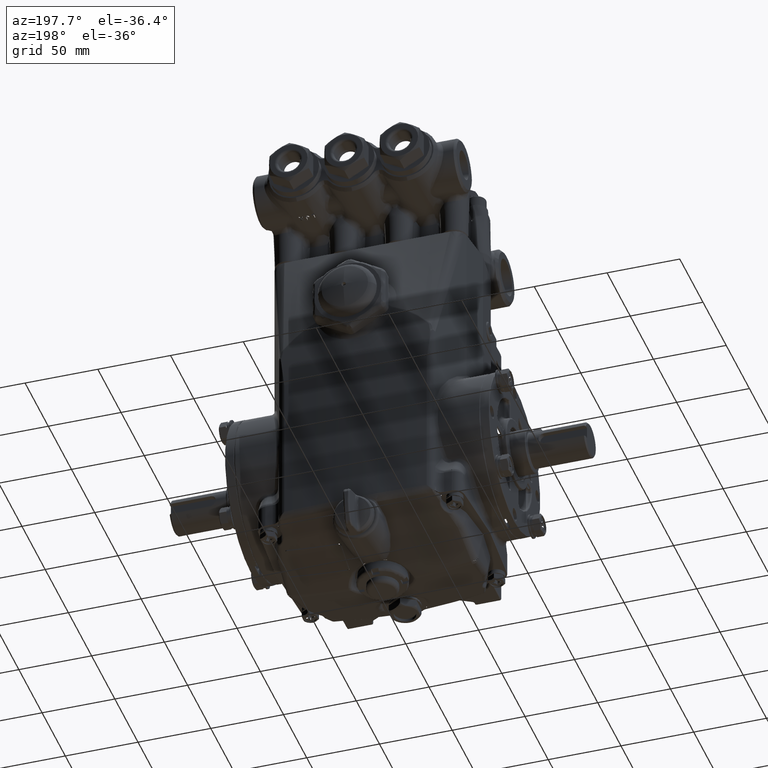
[diagram: clean part render]
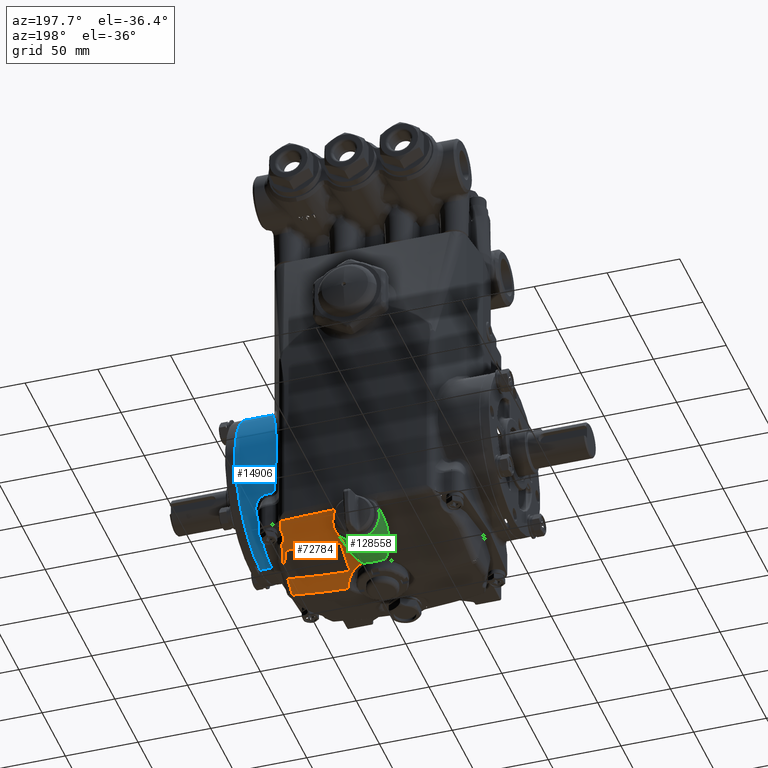
[diagram: same view with three faces highlighted in distinct colors, each labeled with its STEP entity id]
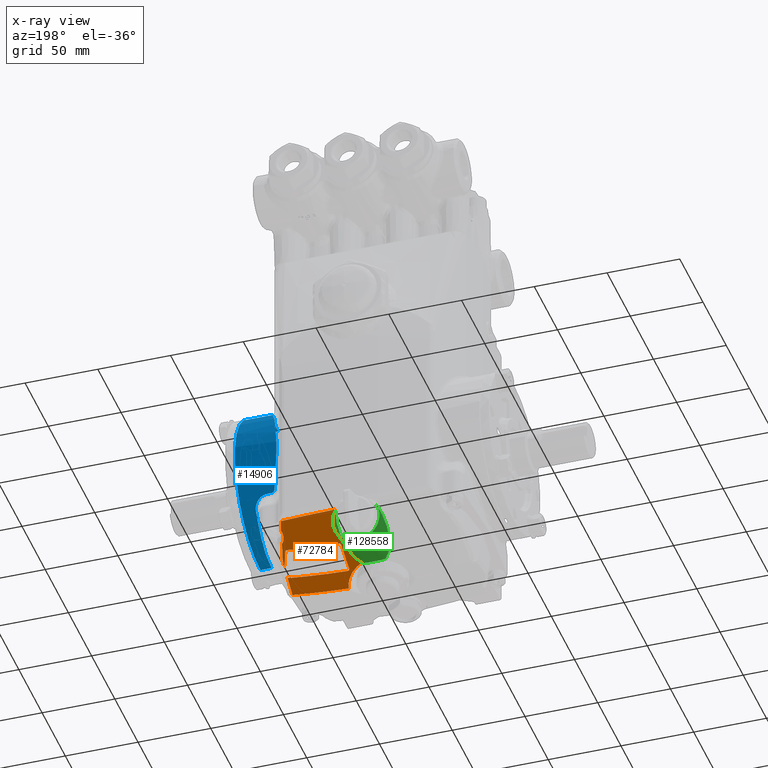
[diagram: x-ray of the same camera — body ghosted, the three highlighted faces saturated]
A machine part, auxiliary view with three faces highlighted in distinct colors.
The next image is the same camera in x-ray (body ghosted, the three faces saturated) — at least one of them is partly hidden behind the body in this view.
Their STEP definitions:

[orange] entity #72784 — the highlighted conical surface has half-angle 22.122 deg.
#1356 = CARTESIAN_POINT ( 'NONE',  ( 0.6653568419440737403, 1.811299788196715221, -2.637841770140414432 ) ) ;
#1554 = CARTESIAN_POINT ( 'NONE',  ( 0.7677165354330710567, 0.5511811023622048555, -3.146620687115927684 ) ) ;
#1840 = CARTESIAN_POINT ( 'NONE',  ( 0.7100738336699644604, 1.294431151852918349, -2.846472409386019198 ) ) ;
#2183 = EDGE_CURVE ( 'NONE', #123053, #56045, #54571, .T. ) ;
#2361 = CARTESIAN_POINT ( 'NONE',  ( 2.275000288287517769, 1.365210548121517098, -2.695114093350844620 ) ) ;
#2410 = CARTESIAN_POINT ( 'NONE',  ( 2.272658242289965713, 1.151936005417297348, -2.782757967197376558 ) ) ;
#2532 = B_SPLINE_CURVE_WITH_KNOTS ( 'NONE', 3,
 ( #100118, #3559, #36416, #58113, #90304, #56758, #70005, #79819, #102207, #46918, #133010, #122502, #101514, #79124 ),
 .UNSPECIFIED., .F., .F.,
 ( 4, 2, 2, 2, 2, 2, 4 ),
 ( 0.000000000000000000, 0.002756366929428791853, 0.004134550394143182359, 0.005512733858857573298, 0.006890917323571964237, 0.008269100788286356044, 0.01102546771771510323 ),
 .UNSPECIFIED. ) ;
#3030 = CARTESIAN_POINT ( 'NONE',  ( 1.070860537897486697, 2.270154111408670516, -2.439006516763121635 ) ) ;
#3190 = CARTESIAN_POINT ( 'NONE',  ( 2.365754402666913947, 1.060583947308351593, -2.808800569280849313 ) ) ;
#3228 = CARTESIAN_POINT ( 'NONE',  ( 0.7636345139743752064, 1.338582677165351953, -2.826449077044861369 ) ) ;
#3559 = CARTESIAN_POINT ( 'NONE',  ( 2.214422369733134222, 1.540516566820404609, -2.630532661990288901 ) ) ;
#4277 = CARTESIAN_POINT ( 'NONE',  ( 2.353467617735986561, 0.5519618356563156247, -3.018620761110287543 ) ) ;
#4337 = CARTESIAN_POINT ( 'NONE',  ( 0.7086614173228347191, 0.6102362204724409711, -3.124840269196194509 ) ) ;
#4598 = CARTESIAN_POINT ( 'NONE',  ( 0.7086614173228347191, 0.6102362204724409711, -3.124840269196194509 ) ) ;
#7400 = CARTESIAN_POINT ( 'NONE',  ( 0.7203343572980167586, 0.4295873674661025987, -3.197924714183749018 ) ) ;
#8519 = ORIENTED_EDGE ( 'NONE', *, *, #134228, .F. ) ;
#9066 = CARTESIAN_POINT ( 'NONE',  ( 2.163373570578166483, 1.338582677165354395, -2.719038380564764434 ) ) ;
#9256 = CARTESIAN_POINT ( 'NONE',  ( 0.7086614173228347191, 0.8998444409390513599, -3.007034753907207758 ) ) ;
#9385 = CONICAL_SURFACE ( 'NONE', #85331, 18.70078740157480368, 0.3861007243444653514 ) ;
#10065 = CARTESIAN_POINT ( 'NONE',  ( 2.365754402666913947, 1.060583947308351593, -2.808800569280849313 ) ) ;
#10236 = VERTEX_POINT ( 'NONE', #119583 ) ;
#10750 = CARTESIAN_POINT ( 'NONE',  ( 2.362973308743419487, 1.068523607892177818, -2.805892633881061471 ) ) ;
#10992 = EDGE_CURVE ( 'NONE', #39221, #10236, #94443, .T. ) ;
#11106 = CARTESIAN_POINT ( 'NONE',  ( 0.3911913583454598164, 0.7533386299745664649, -3.075654932312250178 ) ) ;
#11803 = CARTESIAN_POINT ( 'NONE',  ( 0.5866588876545771880, 1.127834383794114270, -2.918421796937302304 ) ) ;
#12580 = EDGE_CURVE ( 'NONE', #86436, #100370, #28924, .T. ) ;
#12708 = AXIS2_PLACEMENT_3D ( 'NONE', #114369, #124206, #18493 ) ;
#14619 = CARTESIAN_POINT ( 'NONE',  ( 0.9029669646989502141, 0.06661965511511180882, -3.337996256848758669 ) ) ;
#15518 = CARTESIAN_POINT ( 'NONE',  ( 0.7159711647741998641, 0.5815228293050459518, -3.136252341828736689 ) ) ;
#15820 = CARTESIAN_POINT ( 'NONE',  ( 0.8878144901490488961, 0.1227363409386832277, -3.315857240250769333 ) ) ;
#15838 = B_SPLINE_CURVE_WITH_KNOTS ( 'NONE', 3,
 ( #54812, #98886, #3030, #87691 ),
 .UNSPECIFIED., .F., .F.,
 ( 4, 4 ),
 ( 0.001437630537140027840, 0.03931457083484087706 ),
 .UNSPECIFIED. ) ;
#16026 = CARTESIAN_POINT ( 'NONE',  ( 2.071595402617601778, 2.128807688345067728, -2.406096919496714115 ) ) ;
#16458 = CARTESIAN_POINT ( 'NONE',  ( 2.419627957355980463, 0.06661965511511502847, -3.209265597297011663 ) ) ;
#16695 = CARTESIAN_POINT ( 'NONE',  ( 0.4970818853032223927, 0.6282010003291977895, -3.124100886979437330 ) ) ;
#17120 = B_SPLINE_CURVE_WITH_KNOTS ( 'NONE', 3,
 ( #123620, #27682, #101220, #60609, #111719, #69709, #7400, #17231, #113789, #29045, #133402, #26281, #48011, #113124, #15820, #80910 ),
 .UNSPECIFIED., .F., .F.,
 ( 4, 2, 2, 2, 2, 2, 2, 4 ),
 ( 0.004321105511794192527, 0.006671534519484894135, 0.009021963527175595743, 0.01372282154255697467, 0.01489803604640232808, 0.01607325055024767801, 0.01842367955793837442, 0.02312453757331978110 ),
 .UNSPECIFIED. ) ;
#17231 = CARTESIAN_POINT ( 'NONE',  ( 0.7633188674158031262, 0.3692218355631260995, -3.220819549807315774 ) ) ;
#17575 = DIRECTION ( 'NONE',  ( 0.000000000000000000, -1.000000000000000000, 0.000000000000000000 ) ) ;
#17620 = CARTESIAN_POINT ( 'NONE',  ( 0.7225009123595196314, 0.5720537253951956114, -3.139862659476327700 ) ) ;
#18493 = DIRECTION ( 'NONE',  ( 0.000000000000000000, 0.000000000000000000, -1.000000000000000000 ) ) ;
#19372 = B_SPLINE_CURVE_WITH_KNOTS ( 'NONE', 3,
 ( #55011, #97697, #1840, #87899, #87198, #119387, #130596, #34691, #77407, #120084, #138317, #85134, #3228, #88583 ),
 .UNSPECIFIED., .F., .F.,
 ( 4, 2, 2, 2, 2, 2, 4 ),
 ( 2.128932422239557002E-07, 0.0006126435634403267936, 0.001225074233638429608, 0.001531289568737488008, 0.001837504903836546409, 0.002143720238935604809, 0.002449935574034663426 ),
 .UNSPECIFIED. ) ;
#20248 = CARTESIAN_POINT ( 'NONE',  ( 0.6060625354612918514, 1.194235142503861535, -2.890804212450340582 ) ) ;
#20938 = CARTESIAN_POINT ( 'NONE',  ( 0.3680013907330603740, 0.7260055790598713976, -3.087226915816920325 ) ) ;
#20953 = CARTESIAN_POINT ( 'NONE',  ( 2.169507220403415371, 1.338582677165354839, -2.718340662570733368 ) ) ;
#21912 = B_SPLINE_CURVE_WITH_KNOTS ( 'NONE', 3,
 ( #33737, #44958, #87650, #130351, #36522, #59637, #70806, #17620, #89026, #15518, #91776, #121927, #100224, #4337 ),
 .UNSPECIFIED., .F., .F.,
 ( 4, 2, 2, 2, 2, 2, 4 ),
 ( 1.972558262618308347E-07, 0.0003036843762329583364, 0.0006071714966396548480, 0.001214145737453047871, 0.001517632857859735384, 0.001821119978266422896, 0.002428094219079792501 ),
 .UNSPECIFIED. ) ;
#22247 = CARTESIAN_POINT ( 'NONE',  ( 2.394177950160144341, 0.5816192864600490120, -3.001468603780092614 ) ) ;
#22300 = CARTESIAN_POINT ( 'NONE',  ( 0.4337187138526713559, 0.8110008867951175038, -3.051294156443625116 ) ) ;
#22327 = VERTEX_POINT ( 'NONE', #98241 ) ;
#23340 = CIRCLE ( 'NONE', #103789, 19.65795820946284067 ) ;
#23460 = CARTESIAN_POINT ( 'NONE',  ( 2.371414709397988929, 1.031828219432738392, -2.819877866713105252 ) ) ;
#23736 = CARTESIAN_POINT ( 'NONE',  ( 2.163373570578166483, 1.338582677165354395, -2.719038380564764434 ) ) ;
#25667 = CARTESIAN_POINT ( 'NONE',  ( 2.420161948378638961, 0.06776344674494035047, -3.208730838945085484 ) ) ;
#25811 = CARTESIAN_POINT ( 'NONE',  ( 2.108123071799363757, 2.022132497979601151, -2.445653037283406217 ) ) ;
#26281 = CARTESIAN_POINT ( 'NONE',  ( 0.8174908305297902134, 0.2815892874649755795, -3.254283504923779269 ) ) ;
#27027 = CARTESIAN_POINT ( 'NONE',  ( 2.420073495337640601, 0.06739229570511282019, -3.208893843485244535 ) ) ;
#27682 = CARTESIAN_POINT ( 'NONE',  ( 0.5225142047821269564, 0.6117612229315740890, -3.130135046924182429 ) ) ;
#28041 = CARTESIAN_POINT ( 'NONE',  ( 0.000000000000000000, 0.06661965511511502847, 16.29921259842519632 ) ) ;
#28069 = EDGE_CURVE ( 'NONE', #10236, #76817, #129985, .T. ) ;
#28700 = CARTESIAN_POINT ( 'NONE',  ( 2.388708701803786916, 0.5730796359870810042, -3.005644507946827915 ) ) ;
#28924 = B_SPLINE_CURVE_WITH_KNOTS ( 'NONE', 3,
 ( #70919, #82112, #93959, #71595, #9256, #126188, #61127 ),
 .UNSPECIFIED., .F., .F.,
 ( 4, 3, 4 ),
 ( 0.06034208515690921842, 0.06307777925229252070, 0.07869475349304877465 ),
 .UNSPECIFIED. ) ;
#29045 = CARTESIAN_POINT ( 'NONE',  ( 0.7876771723170491457, 0.3320901493747618338, -3.234958017222626214 ) ) ;
#30062 = CARTESIAN_POINT ( 'NONE',  ( 0.4897899592813344527, 0.9016736185435318962, -3.013091524586184455 ) ) ;
#32083 = ORIENTED_EDGE ( 'NONE', *, *, #32937, .F. ) ;
#32118 = CARTESIAN_POINT ( 'NONE',  ( 0.4234017072699213791, 0.7963179017693519102, -3.057493239635920901 ) ) ;
#32937 = EDGE_CURVE ( 'NONE', #102694, #61103, #44715, .T. ) ;
#33737 = CARTESIAN_POINT ( 'NONE',  ( 0.7677165354330710567, 0.5511811023622048555, -3.146620687115927684 ) ) ;
#33939 = CARTESIAN_POINT ( 'NONE',  ( 2.374374798549550025, 0.9732876519360146306, -2.843490046518486469 ) ) ;
#34332 = CARTESIAN_POINT ( 'NONE',  ( 0.7086614173228347191, 1.279527559055118280, -2.852587036683742028 ) ) ;
#34691 = CARTESIAN_POINT ( 'NONE',  ( 0.7371571017351602473, 1.330210138582805124, -2.830893723685333097 ) ) ;
#35337 = B_SPLINE_CURVE_WITH_KNOTS ( 'NONE', 3,
 ( #121739, #81118, #123828, #100031, #25811, #111922, #16026, #74730 ),
 .UNSPECIFIED., .F., .F.,
 ( 4, 2, 2, 4 ),
 ( 0.7521852917785702974, 0.8021772499081759600, 0.9010886249540294157, 1.000000000000000000 ),
 .UNSPECIFIED. ) ;
#35768 = EDGE_LOOP ( 'NONE', ( #76710, #75707, #105421, #32083, #8519, #64307, #41864, #49357, #137397, #82799, #74784, #126583, #69854, #87933, #51223, #129446, #96991, #59627, #124053, #78036 ) ) ;
#36008 = EDGE_CURVE ( 'NONE', #69075, #39221, #15838, .T. ) ;
#36416 = CARTESIAN_POINT ( 'NONE',  ( 2.193942005129690287, 1.568890783896172314, -2.621296987586367422 ) ) ;
#36522 = CARTESIAN_POINT ( 'NONE',  ( 0.7480322929002720667, 0.5544173213727253691, -3.146071665848091392 ) ) ;
#36801 = CARTESIAN_POINT ( 'NONE',  ( -1.715417802882578190E-15, 0.5511811023622046335, 16.29921259842519632 ) ) ;
#36876 = CARTESIAN_POINT ( 'NONE',  ( 2.419627957355980463, 0.06661965511511502847, -3.209265597297011663 ) ) ;
#37158 = CARTESIAN_POINT ( 'NONE',  ( 2.377570878083657302, 0.5624217112813081343, -3.011384796959723609 ) ) ;
#37805 = CARTESIAN_POINT ( 'NONE',  ( 2.380294146571706015, 0.8562065161168725957, -2.890714509227104934 ) ) ;
#38156 = CARTESIAN_POINT ( 'NONE',  ( 0.4732781569009282263, 0.6435880355735366098, -3.118453132177527287 ) ) ;
#39221 = VERTEX_POINT ( 'NONE', #108868 ) ;
#39562 = DIRECTION ( 'NONE',  ( 0.000000000000000000, -1.000000000000000000, 0.000000000000000000 ) ) ;
#40571 = CARTESIAN_POINT ( 'NONE',  ( 2.218867229285995890, 1.299725599015295163, -2.728546484132679417 ) ) ;
#41237 = CARTESIAN_POINT ( 'NONE',  ( 0.7677165354330708347, 1.338582677165354395, -2.826285220637463347 ) ) ;
#41864 = ORIENTED_EDGE ( 'NONE', *, *, #28069, .F. ) ;
#42262 = CARTESIAN_POINT ( 'NONE',  ( 2.256862295819237918, 1.439907381036290790, -2.666700809344725087 ) ) ;
#42525 = CARTESIAN_POINT ( 'NONE',  ( 2.365754402666913947, 1.060583947308351593, -2.808800569280849313 ) ) ;
#44454 = CARTESIAN_POINT ( 'NONE',  ( 2.377334886626757626, 0.9147470844009686353, -2.867102226396780473 ) ) ;
#44591 = EDGE_CURVE ( 'NONE', #100881, #22327, #2532, .T. ) ;
#44715 = B_SPLINE_CURVE_WITH_KNOTS ( 'NONE', 3,
 ( #36876, #132076, #79584, #68392, #121592, #27027, #25667 ),
 .UNSPECIFIED., .F., .F.,
 ( 4, 3, 4 ),
 ( 0.000000000000000000, 3.270175700441475680E-06, 3.547221947968475398E-05 ),
 .UNSPECIFIED. ) ;
#44958 = CARTESIAN_POINT ( 'NONE',  ( 0.7636784031741826739, 0.5511811023622048555, -3.146780111546958469 ) ) ;
#46918 = CARTESIAN_POINT ( 'NONE',  ( 2.130418196808632203, 1.762905439732481039, -2.549180981745167163 ) ) ;
#46969 = CARTESIAN_POINT ( 'NONE',  ( 2.342519685039369914, 0.5511811023622050776, -3.020270375325909917 ) ) ;
#47294 = CARTESIAN_POINT ( 'NONE',  ( 0.3966238274006225750, 0.6812831351925608958, -3.104846312104686312 ) ) ;
#48011 = CARTESIAN_POINT ( 'NONE',  ( 0.8309994691032215330, 0.2557997475426720957, -3.264205412823909302 ) ) ;
#48348 = CARTESIAN_POINT ( 'NONE',  ( 2.394177950160144341, 0.5816192864600490120, -3.001468603780092614 ) ) ;
#48730 = EDGE_CURVE ( 'NONE', #62598, #123053, #69878, .T. ) ;
#49357 = ORIENTED_EDGE ( 'NONE', *, *, #10992, .F. ) ;
#51074 = CARTESIAN_POINT ( 'NONE',  ( 2.214879700429003062, 1.310681244509389165, -2.724527785821205139 ) ) ;
#51223 = ORIENTED_EDGE ( 'NONE', *, *, #106679, .F. ) ;
#52480 = DIRECTION ( 'NONE',  ( 0.000000000000000000, 0.000000000000000000, -1.000000000000000000 ) ) ;
#53026 = CARTESIAN_POINT ( 'NONE',  ( 2.342519685039369914, 0.5511811023622050776, -3.020270375325909917 ) ) ;
#54571 = B_SPLINE_CURVE_WITH_KNOTS ( 'NONE', 3,
 ( #125889, #138405, #136356, #42525 ),
 .UNSPECIFIED., .F., .F.,
 ( 4, 4 ),
 ( 0.000000000000000000, 1.000000000000000000 ),
 .UNSPECIFIED. ) ;
#54812 = CARTESIAN_POINT ( 'NONE',  ( 2.059218054211461979, 2.164254523910876138, -2.392964009919302359 ) ) ;
#55011 = CARTESIAN_POINT ( 'NONE',  ( 0.7086614173228347191, 1.279527559055118280, -2.852587036683742028 ) ) ;
#56045 = VERTEX_POINT ( 'NONE', #3190 ) ;
#56286 = CARTESIAN_POINT ( 'NONE',  ( 2.380294146571706015, 0.8562065161168725957, -2.890714509227104934 ) ) ;
#56758 = CARTESIAN_POINT ( 'NONE',  ( 2.149601027837257927, 1.662927277722454633, -2.587908098182563066 ) ) ;
#57803 = CARTESIAN_POINT ( 'NONE',  ( 0.3700093640393017358, 0.6915924702421532011, -3.101182696825049323 ) ) ;
#58113 = CARTESIAN_POINT ( 'NONE',  ( 2.169138734040908290, 1.614760587758876653, -2.605383527148857681 ) ) ;
#58367 = CARTESIAN_POINT ( 'NONE',  ( 2.371414709397988929, 1.031828219432738392, -2.819877866713105252 ) ) ;
#59627 = ORIENTED_EDGE ( 'NONE', *, *, #61739, .F. ) ;
#59637 = CARTESIAN_POINT ( 'NONE',  ( 0.7371077261957600379, 0.5591142538122176875, -3.144579162464232969 ) ) ;
#59913 = DIRECTION ( 'NONE',  ( -2.168404344971009361E-16, 1.000000000000000000, 0.000000000000000000 ) ) ;
#60254 = CARTESIAN_POINT ( 'NONE',  ( 2.363697734825387808, 0.5548534491144770930, -3.016187468772548286 ) ) ;
#60609 = CARTESIAN_POINT ( 'NONE',  ( 0.5946736150887996786, 0.5563539949043704302, -3.150591960312228323 ) ) ;
#60782 = EDGE_CURVE ( 'NONE', #100633, #77683, #84169, .T. ) ;
#61103 = VERTEX_POINT ( 'NONE', #102341 ) ;
#61127 = CARTESIAN_POINT ( 'NONE',  ( 0.7086614173228347191, 1.279527559055118280, -2.852587036683742028 ) ) ;
#61739 = EDGE_CURVE ( 'NONE', #100370, #100633, #19372, .T. ) ;
#62294 = CARTESIAN_POINT ( 'NONE',  ( 2.218867229285995890, 1.299725599015295163, -2.728546484132679417 ) ) ;
#62377 = CARTESIAN_POINT ( 'NONE',  ( 2.411501344065833941, 0.2390487276197240940, -3.139643337083561470 ) ) ;
#62596 = VERTEX_POINT ( 'NONE', #40571 ) ;
#62598 = VERTEX_POINT ( 'NONE', #37805 ) ;
#62969 = CARTESIAN_POINT ( 'NONE',  ( 0.5361859672735805882, 0.9969462738231066323, -2.973112864119447973 ) ) ;
#63656 = CARTESIAN_POINT ( 'NONE',  ( 0.6521499292801791192, 1.949079147831841219, -2.582260020623050600 ) ) ;
#63670 = CARTESIAN_POINT ( 'NONE',  ( 2.187268509967747132, 1.333884041235282591, -2.718228564434940875 ) ) ;
#63896 = EDGE_CURVE ( 'NONE', #76817, #113753, #17120, .T. ) ;
#64051 = VERTEX_POINT ( 'NONE', #1554 ) ;
#64307 = ORIENTED_EDGE ( 'NONE', *, *, #63896, .F. ) ;
#65289 = EDGE_CURVE ( 'NONE', #64051, #86436, #21912, .T. ) ;
#65352 = CARTESIAN_POINT ( 'NONE',  ( 2.239192553431414545, 1.514628471646269237, -2.638203994132757746 ) ) ;
#68204 = B_SPLINE_CURVE_WITH_KNOTS ( 'NONE', 3,
 ( #83391, #62377, #136565, #103015 ),
 .UNSPECIFIED., .F., .F.,
 ( 4, 4 ),
 ( 0.06567318615887500488, 0.5636784064403529415 ),
 .UNSPECIFIED. ) ;
#68392 = CARTESIAN_POINT ( 'NONE',  ( 2.419699983530172904, 0.06671497603168544122, -3.209217618526996940 ) ) ;
#69075 = VERTEX_POINT ( 'NONE', #110785 ) ;
#69709 = CARTESIAN_POINT ( 'NONE',  ( 0.6817275042837560584, 0.4744935850196223548, -3.181064278049019922 ) ) ;
#69854 = ORIENTED_EDGE ( 'NONE', *, *, #2183, .F. ) ;
#69878 = B_SPLINE_CURVE_WITH_KNOTS ( 'NONE', 3,
 ( #120731, #44454, #33939, #23460 ),
 .UNSPECIFIED., .F., .F.,
 ( 4, 4 ),
 ( 0.8297955996763534126, 1.000000000000000000 ),
 .UNSPECIFIED. ) ;
#70005 = CARTESIAN_POINT ( 'NONE',  ( 2.144604876757689738, 1.679246927505528841, -2.581798901894343690 ) ) ;
#70806 = CARTESIAN_POINT ( 'NONE',  ( 0.7305185960159457093, 0.5637258519607716289, -3.142951245070784161 ) ) ;
#70919 = CARTESIAN_POINT ( 'NONE',  ( 0.7086614173228347191, 0.6102362204724409711, -3.124840269196194509 ) ) ;
#71595 = CARTESIAN_POINT ( 'NONE',  ( 0.7086614173228347191, 0.7100025554759846758, -3.084257810101891817 ) ) ;
#72780 = CARTESIAN_POINT ( 'NONE',  ( 0.3426455728455040095, 0.7003334656591743146, -3.098112262170271247 ) ) ;
#72784 = ADVANCED_FACE ( 'NONE', ( #102603 ), #9385, .T. ) ;
#74730 = CARTESIAN_POINT ( 'NONE',  ( 2.059218054211461979, 2.164254523910876138, -2.392964009919302359 ) ) ;
#74784 = ORIENTED_EDGE ( 'NONE', *, *, #44591, .F. ) ;
#75707 = ORIENTED_EDGE ( 'NONE', *, *, #87966, .F. ) ;
#76710 = ORIENTED_EDGE ( 'NONE', *, *, #135857, .F. ) ;
#76817 = VERTEX_POINT ( 'NONE', #16695 ) ;
#77201 = AXIS2_PLACEMENT_3D ( 'NONE', #36801, #59913, #132703 ) ;
#77254 = B_SPLINE_CURVE_WITH_KNOTS ( 'NONE', 3,
 ( #48348, #122550, #28700, #123254, #37158, #133054, #60254, #4277, #101558, #46969 ),
 .UNSPECIFIED., .F., .F.,
 ( 4, 2, 2, 2, 4 ),
 ( 0.0008200833881811881365, 0.001236049333078490485, 0.001652015277975792725, 0.002067981222873095399, 0.002483947167770397639 ),
 .UNSPECIFIED. ) ;
#77407 = CARTESIAN_POINT ( 'NONE',  ( 0.7406518341270096339, 1.332165182305155904, -2.829963489137840682 ) ) ;
#77683 = VERTEX_POINT ( 'NONE', #23736 ) ;
#78036 = ORIENTED_EDGE ( 'NONE', *, *, #65289, .F. ) ;
#79124 = CARTESIAN_POINT ( 'NONE',  ( 2.145483851197569347, 1.895385442356894767, -2.493269591574716060 ) ) ;
#79584 = CARTESIAN_POINT ( 'NONE',  ( 2.419676816361628902, 0.06668264514864659376, -3.209233735378106189 ) ) ;
#79819 = CARTESIAN_POINT ( 'NONE',  ( 2.136767495776312309, 1.712297396870862798, -2.569166500715525991 ) ) ;
#80910 = CARTESIAN_POINT ( 'NONE',  ( 0.9029669646989502141, 0.06661965511511180882, -3.337996256848758669 ) ) ;
#81118 = CARTESIAN_POINT ( 'NONE',  ( 2.140414598159319670, 1.913701669749553469, -2.486354357084580968 ) ) ;
#82112 = CARTESIAN_POINT ( 'NONE',  ( 0.7086614173228347191, 0.6434916720435377435, -3.111312798982662553 ) ) ;
#82799 = ORIENTED_EDGE ( 'NONE', *, *, #117202, .F. ) ;
#83391 = CARTESIAN_POINT ( 'NONE',  ( 2.420161948378638961, 0.06776344674494035047, -3.208730838945085484 ) ) ;
#84169 = CIRCLE ( 'NONE', #12708, 19.14090007041802366 ) ;
#84477 = VERTEX_POINT ( 'NONE', #22247 ) ;
#84647 = CARTESIAN_POINT ( 'NONE',  ( 0.6634335805003184205, 1.533324859346406832, -2.750977216109902646 ) ) ;
#85134 = CARTESIAN_POINT ( 'NONE',  ( 0.7595551220406264736, 1.338153216606696061, -2.826786204681847714 ) ) ;
#85331 = AXIS2_PLACEMENT_3D ( 'NONE', #134081, #39562, #112421 ) ;
#85332 = CARTESIAN_POINT ( 'NONE',  ( 0.6480855539005315746, 1.396325284329595462, -2.807228530220871932 ) ) ;
#86351 = CARTESIAN_POINT ( 'NONE',  ( 2.336602327243165522, 1.144695856202337936, -2.777952591878785071 ) ) ;
#86436 = VERTEX_POINT ( 'NONE', #4598 ) ;
#87198 = CARTESIAN_POINT ( 'NONE',  ( 0.7198135159511946934, 1.314917888593803763, -2.837775428154880153 ) ) ;
#87650 = CARTESIAN_POINT ( 'NONE',  ( 0.7597097807915395018, 0.5515909400494373171, -3.146768802558897793 ) ) ;
#87691 = CARTESIAN_POINT ( 'NONE',  ( 0.5738984000534242957, 2.288151114768675942, -2.446901362131494562 ) ) ;
#87899 = CARTESIAN_POINT ( 'NONE',  ( 0.7156957220097430739, 1.308486721950622877, -2.840545440367462593 ) ) ;
#87933 = ORIENTED_EDGE ( 'NONE', *, *, #48730, .F. ) ;
#87966 = EDGE_CURVE ( 'NONE', #84477, #98233, #77254, .T. ) ;
#88468 = CARTESIAN_POINT ( 'NONE',  ( 2.326467662028571581, 1.004095839731520279, -2.836812761252110793 ) ) ;
#88583 = CARTESIAN_POINT ( 'NONE',  ( 0.7677165354330708347, 1.338582677165354395, -2.826285220637463347 ) ) ;
#89026 = CARTESIAN_POINT ( 'NONE',  ( 0.7200927043134782712, 0.5751077003435153268, -3.138709638408428759 ) ) ;
#90013 = EDGE_CURVE ( 'NONE', #77683, #62596, #112766, .T. ) ;
#90304 = CARTESIAN_POINT ( 'NONE',  ( 2.161842876877474673, 1.630715714842075004, -2.599690377155279730 ) ) ;
#90991 = CARTESIAN_POINT ( 'NONE',  ( 0.6420323799557895450, 2.017555186105729259, -2.554758527736197049 ) ) ;
#91776 = CARTESIAN_POINT ( 'NONE',  ( 0.7142518163759630223, 0.5848755696727091502, -3.134951722931674567 ) ) ;
#93075 = CARTESIAN_POINT ( 'NONE',  ( 0.6141270215004963617, 2.153592995815478695, -2.500358790813803189 ) ) ;
#93959 = CARTESIAN_POINT ( 'NONE',  ( 0.7086614173228347191, 0.6767471170585378504, -3.097785312651843981 ) ) ;
#94443 = B_SPLINE_CURVE_WITH_KNOTS ( 'NONE', 3,
 ( #101531, #103611, #93075, #90991, #63656, #1356, #126665, #116126, #84647, #85332, #118188, #20248, #11803, #128029, #62969, #104966, #30062, #106343, #107014, #22300, #32118, #11106, #20938, #72780 ),
 .UNSPECIFIED., .F., .F.,
 ( 4, 2, 2, 2, 2, 2, 2, 2, 2, 2, 2, 4 ),
 ( 8.212042420064225385E-17, 0.005675556025011336755, 0.01135111205002259024, 0.01702666807503384547, 0.02270222410004510069, 0.02837778012505635591, 0.03405333615006760767, 0.03689111416257323528, 0.03972889217507886289, 0.04114778118133168017, 0.04256667018758450438, 0.04540444820009011812 ),
 .UNSPECIFIED. ) ;
#94992 = CIRCLE ( 'NONE', #77201, 19.46098201139491479 ) ;
#95481 = CARTESIAN_POINT ( 'NONE',  ( 2.364352975193150019, 1.064551127494364868, -2.807349086810897454 ) ) ;
#96991 = ORIENTED_EDGE ( 'NONE', *, *, #60782, .F. ) ;
#97697 = CARTESIAN_POINT ( 'NONE',  ( 0.7086614173228122926, 1.287077875633908075, -2.849515701863573280 ) ) ;
#98215 = CARTESIAN_POINT ( 'NONE',  ( 2.314897517539114880, 1.217610968398565863, -2.750735356765066086 ) ) ;
#98233 = VERTEX_POINT ( 'NONE', #53026 ) ;
#98241 = CARTESIAN_POINT ( 'NONE',  ( 2.145483851197569347, 1.895385442356894767, -2.493269591574716060 ) ) ;
#98886 = CARTESIAN_POINT ( 'NONE',  ( 1.565963719244903851, 2.228870077307258057, -2.420877833532526502 ) ) ;
#99111 = CARTESIAN_POINT ( 'NONE',  ( 0.3426455728455040095, 0.7003334656591743146, -3.098112262170271247 ) ) ;
#100031 = CARTESIAN_POINT ( 'NONE',  ( 2.119291431959653860, 1.986261615081173160, -2.459067399233351381 ) ) ;
#100118 = CARTESIAN_POINT ( 'NONE',  ( 2.239192553431414545, 1.514628471646269237, -2.638203994132757746 ) ) ;
#100224 = CARTESIAN_POINT ( 'NONE',  ( 0.7086614173228569236, 0.6027637562606541488, -3.127879877207834003 ) ) ;
#100370 = VERTEX_POINT ( 'NONE', #34332 ) ;
#100633 = VERTEX_POINT ( 'NONE', #41237 ) ;
#100878 = EDGE_CURVE ( 'NONE', #56045, #100881, #137045, .T. ) ;
#100881 = VERTEX_POINT ( 'NONE', #65352 ) ;
#101220 = CARTESIAN_POINT ( 'NONE',  ( 0.5471699861507840490, 0.5940639626121999584, -3.136651000206044593 ) ) ;
#101514 = CARTESIAN_POINT ( 'NONE',  ( 2.136128651427034342, 1.862958303548111205, -2.507604959063652217 ) ) ;
#101531 = CARTESIAN_POINT ( 'NONE',  ( 0.5738984000534242957, 2.288151114768675942, -2.446901362131494562 ) ) ;
#101558 = CARTESIAN_POINT ( 'NONE',  ( 2.348029466349673910, 0.5511811023621995265, -3.019602305108565865 ) ) ;
#102207 = CARTESIAN_POINT ( 'NONE',  ( 2.133926601213085750, 1.729028275977938511, -2.562643219636337122 ) ) ;
#102341 = CARTESIAN_POINT ( 'NONE',  ( 2.420161948378638961, 0.06776344674494035047, -3.208730838945085484 ) ) ;
#102603 = FACE_OUTER_BOUND ( 'NONE', #35768, .T. ) ;
#102694 = VERTEX_POINT ( 'NONE', #16458 ) ;
#103015 = CARTESIAN_POINT ( 'NONE',  ( 2.394177950160144341, 0.5816192864600490120, -3.001468603780092614 ) ) ;
#103611 = CARTESIAN_POINT ( 'NONE',  ( 0.5963636592327616892, 2.221157972251702528, -2.473459348452818674 ) ) ;
#103789 = AXIS2_PLACEMENT_3D ( 'NONE', #28041, #17575, #52480 ) ;
#104343 = EDGE_CURVE ( 'NONE', #61103, #84477, #68204, .T. ) ;
#104966 = CARTESIAN_POINT ( 'NONE',  ( 0.5061633507394061038, 0.9329981344593077930, -2.999928859491782784 ) ) ;
#104978 = CARTESIAN_POINT ( 'NONE',  ( 2.192691239511594947, 1.331153745243027320, -2.718721043862972753 ) ) ;
#105421 = ORIENTED_EDGE ( 'NONE', *, *, #104343, .F. ) ;
#106343 = CARTESIAN_POINT ( 'NONE',  ( 0.4628118034915018053, 0.8558354163146361104, -3.032389136931446849 ) ) ;
#106356 = CARTESIAN_POINT ( 'NONE',  ( 2.175513875669384589, 1.337649915130266987, -2.718036002841143439 ) ) ;
#106679 = EDGE_CURVE ( 'NONE', #62596, #62598, #129546, .T. ) ;
#107014 = CARTESIAN_POINT ( 'NONE',  ( 0.4534143523890170613, 0.8407482493142073299, -3.038746929701223731 ) ) ;
#108868 = CARTESIAN_POINT ( 'NONE',  ( 0.5738984000534242957, 2.288151114768675942, -2.446901362131494562 ) ) ;
#110785 = CARTESIAN_POINT ( 'NONE',  ( 2.059218054211461979, 2.164254523910876138, -2.392964009919302359 ) ) ;
#111689 = CARTESIAN_POINT ( 'NONE',  ( 0.4482395774729430737, 0.6572970593931269923, -3.113475619428222707 ) ) ;
#111719 = CARTESIAN_POINT ( 'NONE',  ( 0.6172614145108538120, 0.5365550616200835954, -3.157937945881998498 ) ) ;
#111922 = CARTESIAN_POINT ( 'NONE',  ( 2.084247895901568892, 2.093398244627207028, -2.419174172102241283 ) ) ;
#112421 = DIRECTION ( 'NONE',  ( 0.000000000000000000, 0.000000000000000000, -1.000000000000000000 ) ) ;
#112766 = B_SPLINE_CURVE_WITH_KNOTS ( 'NONE', 3,
 ( #9066, #20953, #106356, #63670, #104978, #138524, #51074, #62294 ),
 .UNSPECIFIED., .F., .F.,
 ( 4, 2, 2, 4 ),
 ( 1.984531153250906402E-07, 0.0004639718325192215636, 0.0009277452119231180535, 0.001855291970730916888 ),
 .UNSPECIFIED. ) ;
#113124 = CARTESIAN_POINT ( 'NONE',  ( 0.8679404141749670343, 0.1770556956673244864, -3.294653311257132344 ) ) ;
#113753 = VERTEX_POINT ( 'NONE', #14619 ) ;
#113789 = CARTESIAN_POINT ( 'NONE',  ( 0.7716629779327800476, 0.3569129183703940167, -3.225498754172656302 ) ) ;
#114369 = CARTESIAN_POINT ( 'NONE',  ( 0.000000000000000000, 1.338582677165354395, 16.29921259842519632 ) ) ;
#116126 = CARTESIAN_POINT ( 'NONE',  ( 0.6674803062845373613, 1.602550887205807628, -2.722676000486592418 ) ) ;
#117143 = CARTESIAN_POINT ( 'NONE',  ( 2.239192553431414545, 1.514628471646269237, -2.638203994132757746 ) ) ;
#117202 = EDGE_CURVE ( 'NONE', #22327, #69075, #35337, .T. ) ;
#118188 = CARTESIAN_POINT ( 'NONE',  ( 0.6367917226464995251, 1.328477949759711230, -2.835208735866425300 ) ) ;
#119387 = CARTESIAN_POINT ( 'NONE',  ( 0.7278490484642571312, 1.323265498983016153, -2.834075119545921950 ) ) ;
#119583 = CARTESIAN_POINT ( 'NONE',  ( 0.3426455728455040095, 0.7003334656591743146, -3.098112262170271247 ) ) ;
#120084 = CARTESIAN_POINT ( 'NONE',  ( 0.7479287251067325837, 1.335309814304328047, -2.828401070616616941 ) ) ;
#120731 = CARTESIAN_POINT ( 'NONE',  ( 2.380294146571706015, 0.8562065161168725957, -2.890714509227104934 ) ) ;
#121592 = CARTESIAN_POINT ( 'NONE',  ( 2.419924013427050546, 0.06702762038351636753, -3.209061766227430113 ) ) ;
#121739 = CARTESIAN_POINT ( 'NONE',  ( 2.145483851197569347, 1.895385442356894767, -2.493269591574716060 ) ) ;
#121927 = CARTESIAN_POINT ( 'NONE',  ( 0.7100755798646325445, 0.5953515139761375030, -3.130843542964786064 ) ) ;
#122502 = CARTESIAN_POINT ( 'NONE',  ( 2.131072140755676081, 1.830005713209250873, -2.521656605006796781 ) ) ;
#122550 = CARTESIAN_POINT ( 'NONE',  ( 2.391734776035565169, 0.5772094098943263418, -3.003578042422152539 ) ) ;
#122731 = CARTESIAN_POINT ( 'NONE',  ( 2.218867229285995890, 1.299725599015295163, -2.728546484132679417 ) ) ;
#123053 = VERTEX_POINT ( 'NONE', #58367 ) ;
#123254 = CARTESIAN_POINT ( 'NONE',  ( 2.381578677585905357, 0.5656443810673327244, -3.009570781638112535 ) ) ;
#123620 = CARTESIAN_POINT ( 'NONE',  ( 0.4970818853032223927, 0.6282010003291977895, -3.124100886979437330 ) ) ;
#123828 = CARTESIAN_POINT ( 'NONE',  ( 2.135217924725480554, 1.931975671557441654, -2.479469407527803426 ) ) ;
#124053 = ORIENTED_EDGE ( 'NONE', *, *, #12580, .F. ) ;
#124206 = DIRECTION ( 'NONE',  ( 0.000000000000000000, -1.000000000000000000, 0.000000000000000000 ) ) ;
#125889 = CARTESIAN_POINT ( 'NONE',  ( 2.371414709397988929, 1.031828219432738392, -2.819877866713105252 ) ) ;
#126188 = CARTESIAN_POINT ( 'NONE',  ( 0.7086614173228347191, 1.089686111431982685, -2.929811169236797408 ) ) ;
#126583 = ORIENTED_EDGE ( 'NONE', *, *, #100878, .F. ) ;
#126665 = CARTESIAN_POINT ( 'NONE',  ( 0.6684412451386717580, 1.741995803894224704, -2.665922238386851717 ) ) ;
#128029 = CARTESIAN_POINT ( 'NONE',  ( 0.5498264254133607976, 1.029590300909865919, -2.959451242769360224 ) ) ;
#129446 = ORIENTED_EDGE ( 'NONE', *, *, #90013, .F. ) ;
#129546 = B_SPLINE_CURVE_WITH_KNOTS ( 'NONE', 3,
 ( #122731, #2410, #88468, #56286 ),
 .UNSPECIFIED., .F., .F.,
 ( 4, 4 ),
 ( 2.251245283301211197E-07, 0.01267649964622792093 ),
 .UNSPECIFIED. ) ;
#129985 = B_SPLINE_CURVE_WITH_KNOTS ( 'NONE', 3,
 ( #99111, #57803, #47294, #111689, #38156, #131989 ),
 .UNSPECIFIED., .F., .F.,
 ( 4, 2, 4 ),
 ( 1.868354362588067661E-17, 0.002191692576854439075, 0.004383385153708859935 ),
 .UNSPECIFIED. ) ;
#130351 = CARTESIAN_POINT ( 'NONE',  ( 0.7519060069080363284, 0.5531976000162843743, -3.146418508002713388 ) ) ;
#130596 = CARTESIAN_POINT ( 'NONE',  ( 0.7307802659361760655, 1.325769475658672647, -2.832944847453076065 ) ) ;
#131989 = CARTESIAN_POINT ( 'NONE',  ( 0.4970818853032223927, 0.6282010003291977895, -3.124100886979437330 ) ) ;
#132076 = CARTESIAN_POINT ( 'NONE',  ( 2.419652811728707498, 0.06665084116985581231, -3.209249740225000203 ) ) ;
#132703 = DIRECTION ( 'NONE',  ( -1.000000000000000000, -2.175822570361699680E-16, 0.000000000000000000 ) ) ;
#133010 = CARTESIAN_POINT ( 'NONE',  ( 2.129781624731585055, 1.779814586331044390, -2.542335540109347036 ) ) ;
#133054 = CARTESIAN_POINT ( 'NONE',  ( 2.368630156025248290, 0.5570097540491244503, -3.014699967650971146 ) ) ;
#133402 = CARTESIAN_POINT ( 'NONE',  ( 0.7953639423799776509, 0.3195549148169788967, -3.239746146987026787 ) ) ;
#134081 = CARTESIAN_POINT ( 'NONE',  ( 0.000000000000000000, 2.421259842519685179, 16.29921259842519632 ) ) ;
#134228 = EDGE_CURVE ( 'NONE', #113753, #102694, #23340, .T. ) ;
#135857 = EDGE_CURVE ( 'NONE', #98233, #64051, #94992, .T. ) ;
#136356 = CARTESIAN_POINT ( 'NONE',  ( 2.369012471473848525, 1.051319121478501817, -2.812192134437252466 ) ) ;
#136565 = CARTESIAN_POINT ( 'NONE',  ( 2.402840371704809908, 0.4103340078227550314, -3.070555880544809657 ) ) ;
#137045 = B_SPLINE_CURVE_WITH_KNOTS ( 'NONE', 3,
 ( #10065, #95481, #10750, #86351, #98215, #2361, #42262, #117143 ),
 .UNSPECIFIED., .F., .F.,
 ( 4, 2, 2, 4 ),
 ( 0.000000000000000000, 0.01088624954086587701, 0.2087089996327151920, 0.4093598286437596934 ),
 .UNSPECIFIED. ) ;
#137397 = ORIENTED_EDGE ( 'NONE', *, *, #36008, .F. ) ;
#138317 = CARTESIAN_POINT ( 'NONE',  ( 0.7517074608267991787, 1.336512521301031597, -2.827763712302403309 ) ) ;
#138405 = CARTESIAN_POINT ( 'NONE',  ( 2.370920031910779269, 1.041611270944815537, -2.815931899297683394 ) ) ;
#138524 = CARTESIAN_POINT ( 'NONE',  ( 2.207604940761820789, 1.320518048374347497, -2.721349957389767482 ) ) ;

[blue] entity #14906 — the highlighted cylindrical surface (partial cylindrical patch) has radius 55 mm, axis along (1, -0, -0).
#78 = VERTEX_POINT ( 'NONE', #6769 ) ;
#1201 = ORIENTED_EDGE ( 'NONE', *, *, #89307, .F. ) ;
#1269 =( BOUNDED_CURVE ( )  B_SPLINE_CURVE ( 3, ( #94837, #20600, #114457, #73799 ),
 .UNSPECIFIED., .F., .T. ) 
 B_SPLINE_CURVE_WITH_KNOTS ( ( 4, 4 ),
 ( 1.580849574406080205, 2.043221746822086349 ),
 .UNSPECIFIED. ) 
 CURVE ( )  GEOMETRIC_REPRESENTATION_ITEM ( )  RATIONAL_B_SPLINE_CURVE ( ( 1.000000000000000000, 0.9822635394635154116, 0.9822635394635154116, 1.000000000000000000 ) ) 
 REPRESENTATION_ITEM ( '' )  );
#1437 = CARTESIAN_POINT ( 'NONE',  ( 2.189920097867191995, 2.153294297498582033, -0.2329633583571052435 ) ) ;
#1759 = CARTESIAN_POINT ( 'NONE',  ( 2.420029408679309491, 1.820616516430447751, -1.172226461746846082 ) ) ;
#2479 = ORIENTED_EDGE ( 'NONE', *, *, #103929, .F. ) ;
#3498 = CARTESIAN_POINT ( 'NONE',  ( 2.182914079590751122, 2.162387231284902622, -0.1157406669298135377 ) ) ;
#3563 = ORIENTED_EDGE ( 'NONE', *, *, #94216, .F. ) ;
#3814 = CARTESIAN_POINT ( 'NONE',  ( 2.355791910466821015, 1.837328447188444569, -1.145863962184987095 ) ) ;
#4620 = CARTESIAN_POINT ( 'NONE',  ( 2.834916132250326903, -8.553836053367910872E-13, 2.165354330708661568 ) ) ;
#4778 = CARTESIAN_POINT ( 'NONE',  ( 2.915934412661236319, 1.621165426257023201, -1.435678530815410969 ) ) ;
#4818 = LINE ( 'NONE', #60112, #69348 ) ;
#6020 = CARTESIAN_POINT ( 'NONE',  ( 2.833573044147181808, 0.02176847656630910219, 2.165244907844546152 ) ) ;
#6171 = CARTESIAN_POINT ( 'NONE',  ( 2.618882594685502774, 1.815162649067177503, -1.180656669223874244 ) ) ;
#6769 = CARTESIAN_POINT ( 'NONE',  ( 2.432232454864653448, 1.820616516430446419, -1.172226461746799897 ) ) ;
#8498 =( BOUNDED_CURVE ( )  B_SPLINE_CURVE ( 3, ( #121130, #100811, #57442, #69307 ),
 .UNSPECIFIED., .F., .T. ) 
 B_SPLINE_CURVE_WITH_KNOTS ( ( 4, 4 ),
 ( 3.889398702551730924, 4.449015564267806866 ),
 .UNSPECIFIED. ) 
 CURVE ( )  GEOMETRIC_REPRESENTATION_ITEM ( )  RATIONAL_B_SPLINE_CURVE ( ( 1.000000000000000000, 0.9740722412601059421, 0.9740722412601059421, 1.000000000000000000 ) ) 
 REPRESENTATION_ITEM ( '' )  );
#9121 = VERTEX_POINT ( 'NONE', #98197 ) ;
#11198 = CARTESIAN_POINT ( 'NONE',  ( 2.224920720426668552, 2.093148554814857842, 0.5545164605268523283 ) ) ;
#11754 = VERTEX_POINT ( 'NONE', #95358 ) ;
#12854 = ORIENTED_EDGE ( 'NONE', *, *, #91947, .F. ) ;
#12918 = CARTESIAN_POINT ( 'NONE',  ( 2.699836573358002312, 1.036775677710985333, 1.901014353345519270 ) ) ;
#13027 = EDGE_CURVE ( 'NONE', #118730, #24374, #37743, .T. ) ;
#13994 = EDGE_CURVE ( 'NONE', #25347, #128309, #33517, .T. ) ;
#14906 = ADVANCED_FACE ( 'NONE', ( #41670 ), #116539, .T. ) ;
#15258 = CARTESIAN_POINT ( 'NONE',  ( 2.890897829059087876, 1.675425255221527410, -1.371800939592950463 ) ) ;
#15807 = CARTESIAN_POINT ( 'NONE',  ( 2.834916132250361986, 0.007256158854866113193, 2.165354330708664232 ) ) ;
#17368 = ORIENTED_EDGE ( 'NONE', *, *, #97733, .F. ) ;
#17372 = CARTESIAN_POINT ( 'NONE',  ( 2.557632326301072734, 1.820616516430408671, -1.172226461746761927 ) ) ;
#17604 = ORIENTED_EDGE ( 'NONE', *, *, #13027, .F. ) ;
#20600 = CARTESIAN_POINT ( 'NONE',  ( 2.791879429211051811, 0.3584923408687987201, 2.161859625411683528 ) ) ;
#24374 = VERTEX_POINT ( 'NONE', #104513 ) ;
#25038 = CARTESIAN_POINT ( 'NONE',  ( 3.307086614166640182, 0.000000000000000000, 0.000000000000000000 ) ) ;
#25062 = CARTESIAN_POINT ( 'NONE',  ( 2.996620088869630827, 0.3358538298913014142, -2.139656249712679870 ) ) ;
#25072 = CARTESIAN_POINT ( 'NONE',  ( 2.701115141882145299, 1.798870862651447133, -1.205370664415323700 ) ) ;
#25347 = VERTEX_POINT ( 'NONE', #112584 ) ;
#25742 = CARTESIAN_POINT ( 'NONE',  ( 2.997849561794700968, 0.05720719989911267345, -2.165103080624237286 ) ) ;
#26411 = CARTESIAN_POINT ( 'NONE',  ( 2.997196904585581745, 0.3817623974804327247, -2.131944499519720981 ) ) ;
#26745 = CARTESIAN_POINT ( 'NONE',  ( 2.699836573358002312, 1.036775677710985333, 1.901014353345519270 ) ) ;
#26984 = B_SPLINE_CURVE_WITH_KNOTS ( 'NONE', 3,
 ( #69151, #17372, #68477, #6171, #120972, #89450, #27122, #25072, #101365, #112569, #99968, #100661, #134235, #59382, #102064, #57968, #133547, #48841, #90836, #15258, #57291, #81059, #123769, #4778, #47469, #91516 ),
 .UNSPECIFIED., .F., .F.,
 ( 4, 2, 2, 2, 2, 2, 2, 2, 2, 2, 2, 2, 4 ),
 ( 0.000000000000000000, 0.001891821109857257316, 0.002837731664785884782, 0.003783642219714512030, 0.005675463329571802523, 0.006621373884500461431, 0.007567284439429121205, 0.008513194994357780113, 0.009459105549286438153, 0.01135092665914376811, 0.01229683721407244003, 0.01324274776900111195, 0.01513456887885848180 ),
 .UNSPECIFIED. ) ;
#27122 = CARTESIAN_POINT ( 'NONE',  ( 2.666696451043287563, 1.806973173080999251, -1.193160169334844589 ) ) ;
#27466 = CARTESIAN_POINT ( 'NONE',  ( 2.294367569176432475, 1.938675363477264213, 1.137610670027403570 ) ) ;
#27934 = CARTESIAN_POINT ( 'NONE',  ( 3.001247000493425965, -5.474055705097304527E-14, -2.165354330708661568 ) ) ;
#28964 = EDGE_CURVE ( 'NONE', #65897, #11754, #46184, .T. ) ;
#31756 = ORIENTED_EDGE ( 'NONE', *, *, #36737, .F. ) ;
#32794 = CARTESIAN_POINT ( 'NONE',  ( 2.920714650841377935, 1.587600093807528978, -1.472509870819574740 ) ) ;
#32880 = CARTESIAN_POINT ( 'NONE',  ( 2.181865193312993334, 2.163739559798199430, 0.09569345636149928502 ) ) ;
#33212 = CARTESIAN_POINT ( 'NONE',  ( 2.282229834916867706, 1.965673774210779490, -0.9296893196579598673 ) ) ;
#33517 = B_SPLINE_CURVE_WITH_KNOTS ( 'NONE', 3,
 ( #117927, #108826, #64752, #12918 ),
 .UNSPECIFIED., .F., .F.,
 ( 4, 4 ),
 ( 3.469446951953614189E-18, 0.001522235697223477992 ),
 .UNSPECIFIED. ) ;
#34275 = CARTESIAN_POINT ( 'NONE',  ( 2.186450764309912476, 2.157841920206465591, -0.1862736558526659481 ) ) ;
#34647 = B_SPLINE_CURVE_WITH_KNOTS ( 'NONE', 3,
 ( #78548, #110060, #45664, #130360 ),
 .UNSPECIFIED., .F., .F.,
 ( 4, 4 ),
 ( 2.547875105340935420E-18, 0.0002660209736205815679 ),
 .UNSPECIFIED. ) ;
#36737 = EDGE_CURVE ( 'NONE', #24374, #36756, #78504, .T. ) ;
#36756 = VERTEX_POINT ( 'NONE', #61239 ) ;
#37743 = LINE ( 'NONE', #109904, #87275 ) ;
#41670 = FACE_OUTER_BOUND ( 'NONE', #138341, .T. ) ;
#43400 = CARTESIAN_POINT ( 'NONE',  ( 2.214111242110439193, 2.117192476782161936, -0.4637572061125144751 ) ) ;
#44786 = CARTESIAN_POINT ( 'NONE',  ( 2.214137029036238324, 2.117135117970423863, 0.4639737199988274163 ) ) ;
#45070 = LINE ( 'NONE', #95682, #92290 ) ;
#45664 = CARTESIAN_POINT ( 'NONE',  ( 3.001247000493426853, 0.003491088892603810574, -2.165354330708661568 ) ) ;
#46182 = CARTESIAN_POINT ( 'NONE',  ( 2.182010245614104615, 2.163523631875809095, -0.09209756802802643305 ) ) ;
#46184 = B_SPLINE_CURVE_WITH_KNOTS ( 'NONE', 3,
 ( #4620, #15807, #58521, #6020 ),
 .UNSPECIFIED., .F., .F.,
 ( 4, 4 ),
 ( 0.0005529193047624394834, 0.001105838609568417490 ),
 .UNSPECIFIED. ) ;
#46499 = CARTESIAN_POINT ( 'NONE',  ( 2.360136675470979828, 1.835108037747382737, -1.149413945969933071 ) ) ;
#46646 = B_SPLINE_CURVE_WITH_KNOTS ( 'NONE', 3,
 ( #11198, #44786, #56694, #109880, #67174, #32880, #99370, #65111, #53892, #46182, #3498, #34275, #1437, #76280, #43400, #119668 ),
 .UNSPECIFIED., .F., .F.,
 ( 4, 2, 2, 2, 2, 2, 2, 4 ),
 ( 0.000000000000000000, 0.007095812614449549353, 0.01064371892167432013, 0.01419162522889909350, 0.01596557838251147499, 0.01773953153612386341, 0.02128743784334863332, 0.02838325045779818007 ),
 .UNSPECIFIED. ) ;
#47197 = CARTESIAN_POINT ( 'NONE',  ( 2.327612382700216642, 1.864727696549315805, -1.100704317807756016 ) ) ;
#47227 = EDGE_CURVE ( 'NONE', #9121, #89261, #26984, .T. ) ;
#47469 = CARTESIAN_POINT ( 'NONE',  ( 2.919519453647200891, 1.604688346922567899, -1.454086013169413993 ) ) ;
#47623 = EDGE_CURVE ( 'NONE', #11754, #25347, #1269, .T. ) ;
#48141 = CARTESIAN_POINT ( 'NONE',  ( 2.996615589479274977, 0.4731062516763475112, -2.113551596670201427 ) ) ;
#48841 = CARTESIAN_POINT ( 'NONE',  ( 2.863472108935826377, 1.710160163005832956, -1.328358890287677729 ) ) ;
#49338 = DIRECTION ( 'NONE',  ( 0.000000000000000000, 0.000000000000000000, -1.000000000000000000 ) ) ;
#49542 = EDGE_CURVE ( 'NONE', #51225, #118730, #34647, .T. ) ;
#50002 = CARTESIAN_POINT ( 'NONE',  ( 2.834916132250326903, -8.553836053367910872E-13, 2.165354330708661568 ) ) ;
#51225 = VERTEX_POINT ( 'NONE', #137549 ) ;
#51596 = DIRECTION ( 'NONE',  ( 1.000000000000000000, -0.000000000000000000, -0.000000000000000000 ) ) ;
#53892 = CARTESIAN_POINT ( 'NONE',  ( 2.180817177939173401, 2.165017101369969499, -0.04491568208714365185 ) ) ;
#54932 = CARTESIAN_POINT ( 'NONE',  ( 2.390773553364281323, 1.824823179282988539, -1.165668736654657867 ) ) ;
#56672 =( BOUNDED_CURVE ( )  B_SPLINE_CURVE ( 3, ( #121406, #87126, #33212, #65447 ),
 .UNSPECIFIED., .F., .F. ) 
 B_SPLINE_CURVE_WITH_KNOTS ( ( 4, 4 ),
 ( 3.400563429013380379, 3.674831595706583798 ),
 .UNSPECIFIED. ) 
 CURVE ( )  GEOMETRIC_REPRESENTATION_ITEM ( )  RATIONAL_B_SPLINE_CURVE ( ( 1.000000000000000000, 0.9937412320302076996, 0.9937412320302076996, 1.000000000000000000 ) ) 
 REPRESENTATION_ITEM ( '' )  );
#56694 = CARTESIAN_POINT ( 'NONE',  ( 2.202693561820952439, 2.135036624589259802, 0.3728106239869881100 ) ) ;
#57291 = CARTESIAN_POINT ( 'NONE',  ( 2.895476968579367760, 1.668070233648332623, -1.380739355267364132 ) ) ;
#57442 = CARTESIAN_POINT ( 'NONE',  ( 2.964687734594000812, 0.9588978268965991925, -1.984134134183584752 ) ) ;
#57697 = CARTESIAN_POINT ( 'NONE',  ( 2.334813571937218946, 1.852837202116557558, -1.120652135000211214 ) ) ;
#57968 = CARTESIAN_POINT ( 'NONE',  ( 2.834510793166090892, 1.734923225546766368, -1.295720803480591155 ) ) ;
#58253 = CARTESIAN_POINT ( 'NONE',  ( 2.992327056910538907, 0.5637264376050651338, -2.090686939994570004 ) ) ;
#58521 = CARTESIAN_POINT ( 'NONE',  ( 2.834471511779911523, 0.01451231771058760812, 2.165317858263889228 ) ) ;
#58731 = DIRECTION ( 'NONE',  ( 1.000000000000000000, -0.000000000000000000, -0.000000000000000000 ) ) ;
#59382 = CARTESIAN_POINT ( 'NONE',  ( 2.810137086962422259, 1.751715151741702448, -1.272921970510207723 ) ) ;
#60112 = CARTESIAN_POINT ( 'NONE',  ( -19685.03937007874265, 0.000000000000000000, 2.165354330708661568 ) ) ;
#60468 = ORIENTED_EDGE ( 'NONE', *, *, #47623, .F. ) ;
#61239 = CARTESIAN_POINT ( 'NONE',  ( 3.307086614166640182, -2.651794250122221246E-16, 2.165354330708661568 ) ) ;
#64752 = CARTESIAN_POINT ( 'NONE',  ( 2.707236426691661535, 1.020315910558582173, 1.909991185221792120 ) ) ;
#65111 = CARTESIAN_POINT ( 'NONE',  ( 2.180526785268474210, 2.165375858866640968, -0.02138746709008351038 ) ) ;
#65441 = CARTESIAN_POINT ( 'NONE',  ( 2.344246016133761046, 1.844723699014530816, -1.133922719474339980 ) ) ;
#65447 = CARTESIAN_POINT ( 'NONE',  ( 2.327612382700216642, 1.864727696549315805, -1.100704317807756016 ) ) ;
#65897 = VERTEX_POINT ( 'NONE', #50002 ) ;
#66731 = ORIENTED_EDGE ( 'NONE', *, *, #28964, .F. ) ;
#66799 = ORIENTED_EDGE ( 'NONE', *, *, #85609, .F. ) ;
#67174 = CARTESIAN_POINT ( 'NONE',  ( 2.186613352208861993, 2.157628379374275429, 0.1885892275417958008 ) ) ;
#68123 = CARTESIAN_POINT ( 'NONE',  ( 2.224920720426668552, 2.093148554814857842, 0.5545164605268523283 ) ) ;
#68477 = CARTESIAN_POINT ( 'NONE',  ( 2.582376196092895704, 1.819240064059689299, -1.174372134108272236 ) ) ;
#69139 = CARTESIAN_POINT ( 'NONE',  ( 2.995487386928054274, 0.5185418274592423771, -2.102870380195392297 ) ) ;
#69151 = CARTESIAN_POINT ( 'NONE',  ( 2.532464889193351887, 1.820616516430446863, -1.172226461746799009 ) ) ;
#69307 = CARTESIAN_POINT ( 'NONE',  ( 2.992327056910538907, 0.5637264376050651338, -2.090686939994570004 ) ) ;
#69348 = VECTOR ( 'NONE', #102104, 39.37007874015748143 ) ;
#70545 = CARTESIAN_POINT ( 'NONE',  ( 2.992327056910538907, 0.5637264376050651338, -2.090686939994570004 ) ) ;
#73799 = CARTESIAN_POINT ( 'NONE',  ( 2.714262431508347451, 0.9853388122601114407, 1.928177067225048225 ) ) ;
#76280 = CARTESIAN_POINT ( 'NONE',  ( 2.202600983985220306, 2.135186560717966309, -0.3721468128045957169 ) ) ;
#77325 = CARTESIAN_POINT ( 'NONE',  ( 2.369612889744431516, 1.831046827813259670, -1.155872589756385294 ) ) ;
#78504 = CIRCLE ( 'NONE', #94085, 2.165354330708661568 ) ;
#78548 = CARTESIAN_POINT ( 'NONE',  ( 3.000905191768266089, 0.01046765692728673057, -2.165329029426523277 ) ) ;
#78974 = CARTESIAN_POINT ( 'NONE',  ( 2.996285488333642721, 0.1040549884975184580, -2.163356751746155382 ) ) ;
#79221 = EDGE_CURVE ( 'NONE', #128309, #88600, #82431, .T. ) ;
#80517 = VERTEX_POINT ( 'NONE', #99307 ) ;
#81049 = CARTESIAN_POINT ( 'NONE',  ( 3.000905191768266089, 0.01046765692728673057, -2.165329029426523277 ) ) ;
#81059 = CARTESIAN_POINT ( 'NONE',  ( 2.903593194520122100, 1.652876374660746661, -1.398892119377336041 ) ) ;
#82431 =( BOUNDED_CURVE ( )  B_SPLINE_CURVE ( 3, ( #26745, #123395, #27466, #68123 ),
 .UNSPECIFIED., .F., .F. ) 
 B_SPLINE_CURVE_WITH_KNOTS ( ( 4, 4 ),
 ( 2.070085784874226231, 2.882621878166205853 ),
 .UNSPECIFIED. ) 
 CURVE ( )  GEOMETRIC_REPRESENTATION_ITEM ( )  RATIONAL_B_SPLINE_CURVE ( ( 1.000000000000000000, 0.9457346828002772821, 0.9457346828002772821, 1.000000000000000000 ) ) 
 REPRESENTATION_ITEM ( '' )  );
#85609 = EDGE_CURVE ( 'NONE', #80517, #118826, #56672, .T. ) ;
#87126 = CARTESIAN_POINT ( 'NONE',  ( 2.247783690399701495, 2.042293606048640964, -0.7464800361690671071 ) ) ;
#87275 = VECTOR ( 'NONE', #99390, 39.37007874015748143 ) ;
#88600 = VERTEX_POINT ( 'NONE', #126805 ) ;
#89261 = VERTEX_POINT ( 'NONE', #32794 ) ;
#89307 = EDGE_CURVE ( 'NONE', #129880, #51225, #97858, .T. ) ;
#89450 = CARTESIAN_POINT ( 'NONE',  ( 2.654874561816855660, 1.809369689380805113, -1.189518673336169563 ) ) ;
#90824 = CARTESIAN_POINT ( 'NONE',  ( 2.995192722002654406, 0.1972203405201242987, -2.156859757434875569 ) ) ;
#90836 = CARTESIAN_POINT ( 'NONE',  ( 2.875645456564244640, 1.696808674284081775, -1.345404253422435081 ) ) ;
#90887 = CARTESIAN_POINT ( 'NONE',  ( -19685.03937007874265, 0.000000000000000000, 0.000000000000000000 ) ) ;
#91516 = CARTESIAN_POINT ( 'NONE',  ( 2.920714650841377935, 1.587600093807528978, -1.472509870819574740 ) ) ;
#91947 = EDGE_CURVE ( 'NONE', #78, #9121, #45070, .T. ) ;
#92290 = VECTOR ( 'NONE', #51596, 39.37007874015748143 ) ;
#93929 = ORIENTED_EDGE ( 'NONE', *, *, #47227, .F. ) ;
#94076 = DIRECTION ( 'NONE',  ( 1.000000000000000000, -0.000000000000000000, -0.000000000000000000 ) ) ;
#94085 = AXIS2_PLACEMENT_3D ( 'NONE', #25038, #94076, #49338 ) ;
#94216 = EDGE_CURVE ( 'NONE', #118826, #78, #98283, .T. ) ;
#94837 = CARTESIAN_POINT ( 'NONE',  ( 2.833573044147181808, 0.02176847656630910219, 2.165244907844546152 ) ) ;
#95358 = CARTESIAN_POINT ( 'NONE',  ( 2.833573044147181808, 0.02176847656630910219, 2.165244907844546152 ) ) ;
#95682 = CARTESIAN_POINT ( 'NONE',  ( -19685.03937007874265, 1.820616516430447085, -1.172226461746799009 ) ) ;
#95977 = ORIENTED_EDGE ( 'NONE', *, *, #79221, .F. ) ;
#97614 = CARTESIAN_POINT ( 'NONE',  ( 2.408079295826049737, 1.821645022111501921, -1.170634117865167800 ) ) ;
#97733 = EDGE_CURVE ( 'NONE', #89261, #129880, #8498, .T. ) ;
#97858 = B_SPLINE_CURVE_WITH_KNOTS ( 'NONE', 3,
 ( #70545, #69139, #48141, #26411, #25062, #132852, #90824, #78974, #25742, #81049 ),
 .UNSPECIFIED., .F., .F.,
 ( 4, 2, 2, 2, 4 ),
 ( 0.000000000000000000, 0.003546287326658007465, 0.007092574653316014929, 0.01063886197997401979, 0.01418514930663202118 ),
 .UNSPECIFIED. ) ;
#98197 = CARTESIAN_POINT ( 'NONE',  ( 2.532464889193351887, 1.820616516430446863, -1.172226461746799009 ) ) ;
#98283 = B_SPLINE_CURVE_WITH_KNOTS ( 'NONE', 3,
 ( #47197, #110216, #57697, #65441, #108816, #3814, #46499, #77325, #110907, #108127, #54932, #97614, #1759, #129812 ),
 .UNSPECIFIED., .F., .F.,
 ( 4, 2, 2, 2, 2, 2, 4 ),
 ( 0.000000000000000000, 0.0009293632568907302582, 0.001394044885336096200, 0.001858726513781462251, 0.002323408142226828302, 0.002788089770672194136, 0.003717453027562906288 ),
 .UNSPECIFIED. ) ;
#99307 = CARTESIAN_POINT ( 'NONE',  ( 2.224920720426668996, 2.093148554814857842, -0.5545164605268522173 ) ) ;
#99370 = CARTESIAN_POINT ( 'NONE',  ( 2.180581225541741830, 2.165308281435589066, 0.04901070734122809497 ) ) ;
#99390 = DIRECTION ( 'NONE',  ( 1.000000000000000000, -0.000000000000000000, -0.000000000000000000 ) ) ;
#99968 = CARTESIAN_POINT ( 'NONE',  ( 2.764059797206227298, 1.775976632164363300, -1.238842095935893672 ) ) ;
#100661 = CARTESIAN_POINT ( 'NONE',  ( 2.783320116348022122, 1.766820788075095461, -1.251865423870408778 ) ) ;
#100811 = CARTESIAN_POINT ( 'NONE',  ( 2.940181541919657082, 1.309273501592581157, -1.772590252395337407 ) ) ;
#101365 = CARTESIAN_POINT ( 'NONE',  ( 2.722920638537827731, 1.792222520854177104, -1.215275574371438516 ) ) ;
#102064 = CARTESIAN_POINT ( 'NONE',  ( 2.818533017741007729, 1.746310629392774150, -1.280332060359319568 ) ) ;
#102104 = DIRECTION ( 'NONE',  ( 1.000000000000000000, -0.000000000000000000, -0.000000000000000000 ) ) ;
#103929 = EDGE_CURVE ( 'NONE', #88600, #80517, #46646, .T. ) ;
#104513 = CARTESIAN_POINT ( 'NONE',  ( 3.307086614166640182, 0.000000000000000000, -2.165354330708661568 ) ) ;
#107129 = EDGE_CURVE ( 'NONE', #65897, #36756, #4818, .T. ) ;
#108127 = CARTESIAN_POINT ( 'NONE',  ( 2.385249461896747025, 1.826132136985539889, -1.163618998964428775 ) ) ;
#108816 = CARTESIAN_POINT ( 'NONE',  ( 2.347859870804390070, 1.842123431487330043, -1.138139405278453919 ) ) ;
#108826 = CARTESIAN_POINT ( 'NONE',  ( 2.712053289720472993, 1.003180171440650970, 1.919059759503227269 ) ) ;
#109880 = CARTESIAN_POINT ( 'NONE',  ( 2.190071999432462224, 2.153086051259655243, 0.2348026329366685871 ) ) ;
#109904 = CARTESIAN_POINT ( 'NONE',  ( -19685.03937007874265, -2.651794250122221246E-16, -2.165354330708661568 ) ) ;
#110060 = CARTESIAN_POINT ( 'NONE',  ( 3.001132935298741256, 0.006984045161048439698, -2.165345869940062062 ) ) ;
#110216 = CARTESIAN_POINT ( 'NONE',  ( 2.330330887586870237, 1.858680825696717331, -1.110948456377815363 ) ) ;
#110907 = CARTESIAN_POINT ( 'NONE',  ( 2.374685763242076586, 1.829236654641229309, -1.158732504851491818 ) ) ;
#110952 = ORIENTED_EDGE ( 'NONE', *, *, #107129, .T. ) ;
#112569 = CARTESIAN_POINT ( 'NONE',  ( 2.753963914065131302, 1.780296878712746667, -1.232619823086091637 ) ) ;
#112584 = CARTESIAN_POINT ( 'NONE',  ( 2.714262431508347451, 0.9853388122601114407, 1.928177067225048225 ) ) ;
#114457 = CARTESIAN_POINT ( 'NONE',  ( 2.751391105441370222, 0.6854820936121004404, 2.081410122437167054 ) ) ;
#116539 = CYLINDRICAL_SURFACE ( 'NONE', #134442, 2.165354330708661568 ) ;
#117927 = CARTESIAN_POINT ( 'NONE',  ( 2.714262431508347451, 0.9853388122601114407, 1.928177067225048225 ) ) ;
#118730 = VERTEX_POINT ( 'NONE', #27934 ) ;
#118826 = VERTEX_POINT ( 'NONE', #138456 ) ;
#119668 = CARTESIAN_POINT ( 'NONE',  ( 2.224920720426668996, 2.093148554814857842, -0.5545164605268522173 ) ) ;
#120972 = CARTESIAN_POINT ( 'NONE',  ( 2.630949183802644420, 1.813465316359295310, -1.183265352077683241 ) ) ;
#121130 = CARTESIAN_POINT ( 'NONE',  ( 2.920714650841377935, 1.587600093807528978, -1.472509870819574740 ) ) ;
#121406 = CARTESIAN_POINT ( 'NONE',  ( 2.224920720426668996, 2.093148554814857842, -0.5545164605268522173 ) ) ;
#123395 = CARTESIAN_POINT ( 'NONE',  ( 2.461756253539471029, 1.566346528792579962, 1.612196871741579773 ) ) ;
#123769 = CARTESIAN_POINT ( 'NONE',  ( 2.907126062173174486, 1.645029633680164860, -1.408113838877049329 ) ) ;
#126333 = ORIENTED_EDGE ( 'NONE', *, *, #49542, .F. ) ;
#126711 = ORIENTED_EDGE ( 'NONE', *, *, #13994, .F. ) ;
#126805 = CARTESIAN_POINT ( 'NONE',  ( 2.224920720426668552, 2.093148554814857842, 0.5545164605268523283 ) ) ;
#127051 = DIRECTION ( 'NONE',  ( 0.000000000000000000, 0.000000000000000000, 1.000000000000000000 ) ) ;
#128309 = VERTEX_POINT ( 'NONE', #130136 ) ;
#129812 = CARTESIAN_POINT ( 'NONE',  ( 2.432232454864653448, 1.820616516430446419, -1.172226461746799897 ) ) ;
#129880 = VERTEX_POINT ( 'NONE', #58253 ) ;
#130136 = CARTESIAN_POINT ( 'NONE',  ( 2.699836573358002312, 1.036775677710985333, 1.901014353345519270 ) ) ;
#130360 = CARTESIAN_POINT ( 'NONE',  ( 3.001247000493425965, -5.474055705097304527E-14, -2.165354330708661568 ) ) ;
#132852 = CARTESIAN_POINT ( 'NONE',  ( 2.995616580941062423, 0.2435827851895652763, -2.152113865190802056 ) ) ;
#133547 = CARTESIAN_POINT ( 'NONE',  ( 2.842123480178768258, 1.728912408571944503, -1.303736053716292531 ) ) ;
#134235 = CARTESIAN_POINT ( 'NONE',  ( 2.792530616634989471, 1.761970238058271576, -1.258688681146406863 ) ) ;
#134442 = AXIS2_PLACEMENT_3D ( 'NONE', #90887, #58731, #127051 ) ;
#137549 = CARTESIAN_POINT ( 'NONE',  ( 3.000905191768266089, 0.01046765692728673057, -2.165329029426523277 ) ) ;
#138341 = EDGE_LOOP ( 'NONE', ( #17604, #126333, #1201, #17368, #93929, #12854, #3563, #66799, #2479, #95977, #126711, #60468, #66731, #110952, #31756 ) ) ;
#138456 = CARTESIAN_POINT ( 'NONE',  ( 2.327612382700216642, 1.864727696549315805, -1.100704317807756016 ) ) ;

[green] entity #128558 — the highlighted cylindrical surface (edge-blend (fillet) strip) has radius 16 mm, axis along (-0, 0.9848, -0.1736).
#331 = ORIENTED_EDGE ( 'NONE', *, *, #122002, .F. ) ;
#546 = DIRECTION ( 'NONE',  ( -0.000000000000000000, 0.9848077530122093526, -0.1736481776669237254 ) ) ;
#874 = CARTESIAN_POINT ( 'NONE',  ( 0.4553424914769545473, 0.9086943429342611012, -3.027990190870709863 ) ) ;
#1045 = CARTESIAN_POINT ( 'NONE',  ( -0.4199339273803883166, 0.8473149110367166337, -3.051897402178101348 ) ) ;
#2622 = EDGE_CURVE ( 'NONE', #76485, #58452, #63024, .T. ) ;
#2944 = CARTESIAN_POINT ( 'NONE',  ( 0.3350183959532823663, 0.7326503522969686211, -3.096732819407684634 ) ) ;
#7517 = CARTESIAN_POINT ( 'NONE',  ( 0.2494272984703826967, 0.7466123699681972425, -3.144579356241058665 ) ) ;
#10625 = VERTEX_POINT ( 'NONE', #101135 ) ;
#10637 = CARTESIAN_POINT ( 'NONE',  ( 0.5794585704876376031, 2.164344219462048358, -2.552746343953341768 ) ) ;
#11487 = CARTESIAN_POINT ( 'NONE',  ( -0.5007823413539025381, 1.004299726054192377, -2.990878340097106847 ) ) ;
#12191 = CARTESIAN_POINT ( 'NONE',  ( -0.6291945773584877166, 1.611869302863030651, -2.758599145732508084 ) ) ;
#12716 = CARTESIAN_POINT ( 'NONE',  ( 0.5411900567146773477, 2.299478516500260916, -2.503197350177481795 ) ) ;
#13390 = CARTESIAN_POINT ( 'NONE',  ( 0.6058685393623942650, 2.027828993830526283, -2.603144297676506902 ) ) ;
#18235 = B_SPLINE_CURVE_WITH_KNOTS ( 'NONE', 3,
 ( #93572, #91488, #7517, #82408, #114601, #60730, #123749, #134210, #49526, #50206, #103426, #92206, #70532, #113247, #92890, #41072, #134916, #40375, #126482, #69832, #29875, #39006 ),
 .UNSPECIFIED., .F., .F.,
 ( 4, 2, 2, 2, 2, 2, 2, 2, 2, 2, 4 ),
 ( -0.008215085221305677352, -0.006162799827148967430, -0.005136657130070613336, -0.004110514432992258375, -0.002058229038835541515, -0.001032086341757180482, -5.943644678818582605E-06, 0.002046341749477903482, 0.004098627143634625547, 0.006150912537791347612, 0.008203197931948071411 ),
 .UNSPECIFIED. ) ;
#19283 = CARTESIAN_POINT ( 'NONE',  ( -0.5411900567146773477, 2.299478516500260916, -2.503197350177481795 ) ) ;
#19946 = CARTESIAN_POINT ( 'NONE',  ( -0.5405554005920555349, 2.301452063634247480, -2.502465823307436388 ) ) ;
#21110 = B_SPLINE_CURVE_WITH_KNOTS ( 'NONE', 3,
 ( #96738, #2944, #119801, #107924, #118408, #874, #109302, #117720, #129612, #117030, #43526, #33698, #97422, #65932, #108609, #22519, #45615, #21142, #13390, #10637, #131003, #12716 ),
 .UNSPECIFIED., .F., .F.,
 ( 4, 2, 2, 2, 2, 2, 2, 2, 2, 2, 4 ),
 ( 0.001321920488798300096, 0.004161926858309911680, 0.007001933227821523914, 0.009841939597333133546, 0.01268194596684474665, 0.01836195870586799020, 0.02404197144489123375, 0.02972198418391447730, 0.03540199692293771738, 0.04108200966196096093, 0.04676202240098420448 ),
 .UNSPECIFIED. ) ;
#21142 = CARTESIAN_POINT ( 'NONE',  ( 0.6153889347492115247, 1.959145393531893431, -2.628615368473457448 ) ) ;
#22519 = CARTESIAN_POINT ( 'NONE',  ( 0.6304703851123852898, 1.751555034253001741, -2.706074906062975849 ) ) ;
#22686 = CARTESIAN_POINT ( 'NONE',  ( -0.5141253022834381126, 1.037089258179047624, -2.978185571594644809 ) ) ;
#24756 = CARTESIAN_POINT ( 'NONE',  ( -0.6304703851123852898, 1.751555034253001741, -2.706074906062975849 ) ) ;
#25937 = EDGE_CURVE ( 'NONE', #10625, #47247, #31640, .T. ) ;
#26011 = CARTESIAN_POINT ( 'NONE',  ( -0.5405554005920555349, 2.301452063634247480, -2.502465823307436388 ) ) ;
#29875 = CARTESIAN_POINT ( 'NONE',  ( -0.2704916116330691178, 0.7348058908460061156, -3.132747039608918094 ) ) ;
#30978 = CARTESIAN_POINT ( 'NONE',  ( 0.3096772750844292155, 0.7071076418276488473, -3.106755820131148038 ) ) ;
#31640 = B_SPLINE_CURVE_WITH_KNOTS ( 'NONE', 3,
 ( #65400, #119968, #89146, #108090, #1045, #107390, #98266, #11487, #22686, #110175, #75873, #120654, #130477, #76586, #12191, #24756, #43692, #54196, #131165, #97581, #87080, #96902 ),
 .UNSPECIFIED., .F., .F.,
 ( 4, 2, 2, 2, 2, 2, 2, 2, 2, 2, 4 ),
 ( 0.001321920488798300096, 0.004161926858309911680, 0.007001933227821523914, 0.009841939597333133546, 0.01268194596684474665, 0.01836195870586799020, 0.02404197144489123375, 0.02972198418391447730, 0.03540199692293771738, 0.04108200966196096093, 0.04676202240098420448 ),
 .UNSPECIFIED. ) ;
#33216 = CARTESIAN_POINT ( 'NONE',  ( 0.5407687930036100266, 2.300795778593193841, -2.502712262585028213 ) ) ;
#33698 = CARTESIAN_POINT ( 'NONE',  ( 0.5990355011977827049, 1.337230643761709414, -2.862817890147427491 ) ) ;
#37070 = EDGE_CURVE ( 'NONE', #136780, #52809, #55736, .T. ) ;
#38456 = VERTEX_POINT ( 'NONE', #26011 ) ;
#39006 = CARTESIAN_POINT ( 'NONE',  ( -0.2903846647747746479, 0.7219914930115688412, -3.119994163135438647 ) ) ;
#40363 = CARTESIAN_POINT ( 'NONE',  ( 0.2903846647747746479, 0.7219914930115688412, -3.119994163135438647 ) ) ;
#40375 = CARTESIAN_POINT ( 'NONE',  ( -0.1812212339032567565, 0.7769996490252988330, -3.175212143224328543 ) ) ;
#41072 = CARTESIAN_POINT ( 'NONE',  ( -0.1065225541545672672, 0.7982932779232608800, -3.196835379590557302 ) ) ;
#42316 = CARTESIAN_POINT ( 'NONE',  ( -0.5409803456245259046, 2.300137914175873988, -2.502956114487699057 ) ) ;
#43394 = ORIENTED_EDGE ( 'NONE', *, *, #37070, .F. ) ;
#43526 = CARTESIAN_POINT ( 'NONE',  ( 0.5690553983194837073, 1.202504411305216792, -2.914403308772950396 ) ) ;
#43692 = CARTESIAN_POINT ( 'NONE',  ( -0.6276923656882403835, 1.821008737137902456, -2.680080577577093948 ) ) ;
#43960 = ORIENTED_EDGE ( 'NONE', *, *, #134057, .F. ) ;
#45615 = CARTESIAN_POINT ( 'NONE',  ( 0.6276923656882403835, 1.821008737137902456, -2.680080577577093948 ) ) ;
#47247 = VERTEX_POINT ( 'NONE', #92227 ) ;
#49436 = CARTESIAN_POINT ( 'NONE',  ( -0.2972444414402483082, 0.7175726686802283982, -3.115596553385575618 ) ) ;
#49526 = CARTESIAN_POINT ( 'NONE',  ( 0.1072044297395128853, 0.7981483795645130108, -3.196687830761946625 ) ) ;
#50206 = CARTESIAN_POINT ( 'NONE',  ( 0.06765480921350121302, 0.8043142219691316042, -3.202971717171896771 ) ) ;
#52809 = VERTEX_POINT ( 'NONE', #30978 ) ;
#52994 = CARTESIAN_POINT ( 'NONE',  ( 0.000000000000000000, 2.322834645669291209, -2.834645669291338432 ) ) ;
#54167 = B_SPLINE_CURVE_WITH_KNOTS ( 'NONE', 3,
 ( #60643, #49436, #59270, #134824 ),
 .UNSPECIFIED., .F., .F.,
 ( 4, 4 ),
 ( 0.000000000000000000, 0.0007043578755650945671 ),
 .UNSPECIFIED. ) ;
#54196 = CARTESIAN_POINT ( 'NONE',  ( -0.6153889347492115247, 1.959145393531893431, -2.628615368473457448 ) ) ;
#55736 = B_SPLINE_CURVE_WITH_KNOTS ( 'NONE', 3,
 ( #40363, #94265, #85133, #104094 ),
 .UNSPECIFIED., .F., .F.,
 ( 4, 4 ),
 ( 0.000000000000000000, 0.0007043578755650945671 ),
 .UNSPECIFIED. ) ;
#55925 = ORIENTED_EDGE ( 'NONE', *, *, #131524, .T. ) ;
#58452 = VERTEX_POINT ( 'NONE', #84370 ) ;
#59270 = CARTESIAN_POINT ( 'NONE',  ( -0.3037036450648466501, 0.7126685763944694552, -3.111160763361939363 ) ) ;
#60643 = CARTESIAN_POINT ( 'NONE',  ( -0.2903846647747746479, 0.7219914930115688412, -3.119994163135438647 ) ) ;
#60730 = CARTESIAN_POINT ( 'NONE',  ( 0.1808886634626301892, 0.7766190288319396728, -3.174832054503033962 ) ) ;
#61306 = CARTESIAN_POINT ( 'NONE',  ( -0.5407687930036100266, 2.300795778593193841, -2.502712262585028213 ) ) ;
#63024 = B_SPLINE_CURVE_WITH_KNOTS ( 'NONE', 3,
 ( #129819, #129127, #33216, #86444 ),
 .UNSPECIFIED., .F., .F.,
 ( 4, 4 ),
 ( 0.000000000000000000, 5.583846852986424849E-05 ),
 .UNSPECIFIED. ) ;
#63599 = ORIENTED_EDGE ( 'NONE', *, *, #25937, .T. ) ;
#65400 = CARTESIAN_POINT ( 'NONE',  ( -0.3096772750844292155, 0.7071076418276488473, -3.106755820131148038 ) ) ;
#65932 = CARTESIAN_POINT ( 'NONE',  ( 0.6251476524184433892, 1.542586788933430819, -2.784772109443343080 ) ) ;
#69832 = CARTESIAN_POINT ( 'NONE',  ( -0.2495095987492021994, 0.7465613724583046729, -3.144528360788186205 ) ) ;
#70532 = CARTESIAN_POINT ( 'NONE',  ( 0.01379194346175588448, 0.8085219182687234385, -3.207265096304738883 ) ) ;
#71899 = CARTESIAN_POINT ( 'NONE',  ( -0.2903846647747746479, 0.7219914930115688412, -3.119994163135438647 ) ) ;
#73135 = CARTESIAN_POINT ( 'NONE',  ( 0.000000000000000000, 2.245290728109275324, -2.820972584435675223 ) ) ;
#75873 = CARTESIAN_POINT ( 'NONE',  ( -0.5690553983194837073, 1.202504411305216792, -2.914403308772950396 ) ) ;
#76485 = VERTEX_POINT ( 'NONE', #110676 ) ;
#76586 = CARTESIAN_POINT ( 'NONE',  ( -0.6251476524184433892, 1.542586788933430819, -2.784772109443343080 ) ) ;
#76608 = AXIS2_PLACEMENT_3D ( 'NONE', #52994, #546, #106901 ) ;
#82408 = CARTESIAN_POINT ( 'NONE',  ( 0.2158214822030069258, 0.7624950100068734749, -3.160564276601497191 ) ) ;
#84370 = CARTESIAN_POINT ( 'NONE',  ( 0.5405554005920555349, 2.301452063634247480, -2.502465823307436388 ) ) ;
#85133 = CARTESIAN_POINT ( 'NONE',  ( 0.3037036450648466501, 0.7126685763944694552, -3.111160763361939363 ) ) ;
#85696 = DIRECTION ( 'NONE',  ( -0.000000000000000000, 0.9848077530122093526, -0.1736481776669237254 ) ) ;
#86444 = CARTESIAN_POINT ( 'NONE',  ( 0.5405554005920555349, 2.301452063634247480, -2.502465823307436388 ) ) ;
#87080 = CARTESIAN_POINT ( 'NONE',  ( -0.5625936229486225848, 2.232178967323513064, -2.527818385052258421 ) ) ;
#89146 = CARTESIAN_POINT ( 'NONE',  ( -0.3580299946302228364, 0.7599529729475559270, -3.086036011857432815 ) ) ;
#90308 = ORIENTED_EDGE ( 'NONE', *, *, #133603, .T. ) ;
#91488 = CARTESIAN_POINT ( 'NONE',  ( 0.2704727200886090643, 0.7348180601075418039, -3.132759150446362995 ) ) ;
#92206 = CARTESIAN_POINT ( 'NONE',  ( 0.02730494263296677146, 0.8079903052051710111, -3.206722331250276170 ) ) ;
#92227 = CARTESIAN_POINT ( 'NONE',  ( -0.5411900567146773477, 2.299478516500260916, -2.503197350177481795 ) ) ;
#92890 = CARTESIAN_POINT ( 'NONE',  ( -0.05364842166940504004, 0.8064581303258471223, -3.205156797460658069 ) ) ;
#93572 = CARTESIAN_POINT ( 'NONE',  ( 0.2903846647747746479, 0.7219914930115688412, -3.119994163135438647 ) ) ;
#94265 = CARTESIAN_POINT ( 'NONE',  ( 0.2972444414402483082, 0.7175726686802283982, -3.115596553385575618 ) ) ;
#96531 = CARTESIAN_POINT ( 'NONE',  ( 0.2903846647747746479, 0.7219914930115688412, -3.119994163135438647 ) ) ;
#96738 = CARTESIAN_POINT ( 'NONE',  ( 0.3096772750844292155, 0.7071076418276488473, -3.106755820131148038 ) ) ;
#96902 = CARTESIAN_POINT ( 'NONE',  ( -0.5411900567146773477, 2.299478516500260916, -2.503197350177481795 ) ) ;
#97422 = CARTESIAN_POINT ( 'NONE',  ( 0.6100637653148296424, 1.405277324924107951, -2.836877734191547429 ) ) ;
#97581 = CARTESIAN_POINT ( 'NONE',  ( -0.5794585704876376031, 2.164344219462048358, -2.552746343953341768 ) ) ;
#98266 = CARTESIAN_POINT ( 'NONE',  ( -0.4713992358933044580, 0.9401423009625838878, -3.015765251811706182 ) ) ;
#101135 = CARTESIAN_POINT ( 'NONE',  ( -0.3096772750844292155, 0.7071076418276488473, -3.106755820131148038 ) ) ;
#101892 = EDGE_LOOP ( 'NONE', ( #331, #102237, #43960, #43394, #55925, #105498, #63599, #90308 ) ) ;
#102237 = ORIENTED_EDGE ( 'NONE', *, *, #2622, .F. ) ;
#103426 = CARTESIAN_POINT ( 'NONE',  ( 0.05424522515192652800, 0.8058879417757021102, -3.204577148098316730 ) ) ;
#104094 = CARTESIAN_POINT ( 'NONE',  ( 0.3096772750844292155, 0.7071076418276488473, -3.106755820131148038 ) ) ;
#104174 = CYLINDRICAL_SURFACE ( 'NONE', #76608, 0.6299212598425197873 ) ;
#105498 = ORIENTED_EDGE ( 'NONE', *, *, #107504, .T. ) ;
#106901 = DIRECTION ( 'NONE',  ( 0.000000000000000000, 0.1736481776669238919, 0.9848077530122091305 ) ) ;
#107390 = CARTESIAN_POINT ( 'NONE',  ( -0.4553424914769545473, 0.9086943429342611012, -3.027990190870709863 ) ) ;
#107504 = EDGE_CURVE ( 'NONE', #131440, #10625, #54167, .T. ) ;
#107924 = CARTESIAN_POINT ( 'NONE',  ( 0.4004895890227156419, 0.8172572983725321372, -3.063629121657358123 ) ) ;
#108090 = CARTESIAN_POINT ( 'NONE',  ( -0.4004895890227156419, 0.8172572983725321372, -3.063629121657358123 ) ) ;
#108609 = CARTESIAN_POINT ( 'NONE',  ( 0.6291945773584877166, 1.611869302863030651, -2.758599145732508084 ) ) ;
#109302 = CARTESIAN_POINT ( 'NONE',  ( 0.4713992358933044580, 0.9401423009625838878, -3.015765251811706182 ) ) ;
#110175 = CARTESIAN_POINT ( 'NONE',  ( -0.5501384600331441499, 1.135819213954888829, -2.940050854854708184 ) ) ;
#110676 = CARTESIAN_POINT ( 'NONE',  ( 0.5411900567146773477, 2.299478516500260916, -2.503197350177481795 ) ) ;
#113247 = CARTESIAN_POINT ( 'NONE',  ( -0.02687718022478461505, 0.8085402064410652789, -3.207283764479505361 ) ) ;
#114601 = CARTESIAN_POINT ( 'NONE',  ( 0.2042984215575569251, 0.7674718181157124119, -3.165585863340838912 ) ) ;
#115974 = AXIS2_PLACEMENT_3D ( 'NONE', #73135, #85696, #125660 ) ;
#116703 = FACE_OUTER_BOUND ( 'NONE', #101892, .T. ) ;
#117030 = CARTESIAN_POINT ( 'NONE',  ( 0.5501384600331441499, 1.135819213954888829, -2.940050854854708184 ) ) ;
#117720 = CARTESIAN_POINT ( 'NONE',  ( 0.5007823413539025381, 1.004299726054192377, -2.990878340097106847 ) ) ;
#118408 = CARTESIAN_POINT ( 'NONE',  ( 0.4199339273803883166, 0.8473149110367166337, -3.051897402178101348 ) ) ;
#119801 = CARTESIAN_POINT ( 'NONE',  ( 0.3580299946302228364, 0.7599529729475559270, -3.086036011857432815 ) ) ;
#119968 = CARTESIAN_POINT ( 'NONE',  ( -0.3350183959532823663, 0.7326503522969686211, -3.096732819407684634 ) ) ;
#120476 = CIRCLE ( 'NONE', #115974, 0.6299212598425197873 ) ;
#120654 = CARTESIAN_POINT ( 'NONE',  ( -0.5990355011977827049, 1.337230643761709414, -2.862817890147427491 ) ) ;
#122002 = EDGE_CURVE ( 'NONE', #58452, #38456, #120476, .T. ) ;
#123749 = CARTESIAN_POINT ( 'NONE',  ( 0.1689608553323304896, 0.7808096714525766258, -3.179077022905336225 ) ) ;
#125660 = DIRECTION ( 'NONE',  ( 0.000000000000000000, 0.1736481776669238919, 0.9848077530122091305 ) ) ;
#126482 = CARTESIAN_POINT ( 'NONE',  ( -0.2049743334487670876, 0.7676335269112135595, -3.165735557056380323 ) ) ;
#127978 = B_SPLINE_CURVE_WITH_KNOTS ( 'NONE', 3,
 ( #19283, #42316, #61306, #19946 ),
 .UNSPECIFIED., .F., .F.,
 ( 4, 4 ),
 ( 0.000000000000000000, 5.583846852986424849E-05 ),
 .UNSPECIFIED. ) ;
#128558 = ADVANCED_FACE ( 'NONE', ( #116703 ), #104174, .T. ) ;
#129127 = CARTESIAN_POINT ( 'NONE',  ( 0.5409803456245259046, 2.300137914175873988, -2.502956114487699057 ) ) ;
#129612 = CARTESIAN_POINT ( 'NONE',  ( 0.5141253022834381126, 1.037089258179047624, -2.978185571594644809 ) ) ;
#129819 = CARTESIAN_POINT ( 'NONE',  ( 0.5411900567146773477, 2.299478516500260916, -2.503197350177481795 ) ) ;
#130477 = CARTESIAN_POINT ( 'NONE',  ( -0.6100637653148296424, 1.405277324924107951, -2.836877734191547429 ) ) ;
#131003 = CARTESIAN_POINT ( 'NONE',  ( 0.5625936229486225848, 2.232178967323513064, -2.527818385052258421 ) ) ;
#131165 = CARTESIAN_POINT ( 'NONE',  ( -0.6058685393623942650, 2.027828993830526283, -2.603144297676506902 ) ) ;
#131440 = VERTEX_POINT ( 'NONE', #71899 ) ;
#131524 = EDGE_CURVE ( 'NONE', #136780, #131440, #18235, .T. ) ;
#133603 = EDGE_CURVE ( 'NONE', #47247, #38456, #127978, .T. ) ;
#134057 = EDGE_CURVE ( 'NONE', #52809, #76485, #21110, .T. ) ;
#134210 = CARTESIAN_POINT ( 'NONE',  ( 0.1324695688908505142, 0.7921731430737787294, -3.190603813286828849 ) ) ;
#134824 = CARTESIAN_POINT ( 'NONE',  ( -0.3096772750844292155, 0.7071076418276488473, -3.106755820131148038 ) ) ;
#134916 = CARTESIAN_POINT ( 'NONE',  ( -0.1320733122515628521, 0.7922886020487043268, -3.190721030895122379 ) ) ;
#136780 = VERTEX_POINT ( 'NONE', #96531 ) ;